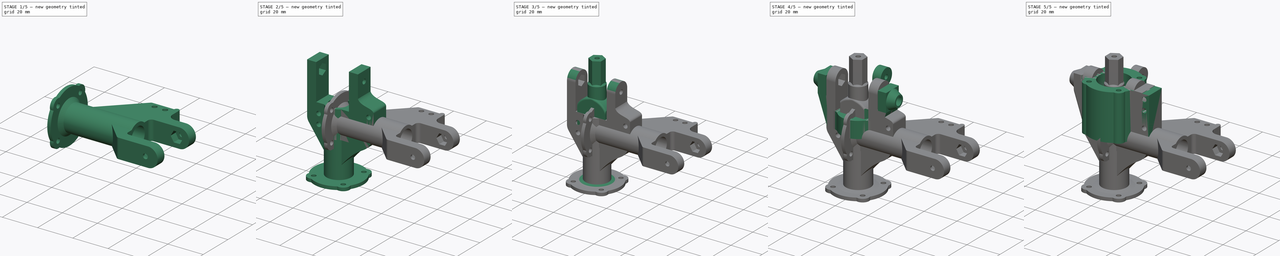
[diagram: build sequence overview — one tinted view per stage of 5, left to right]
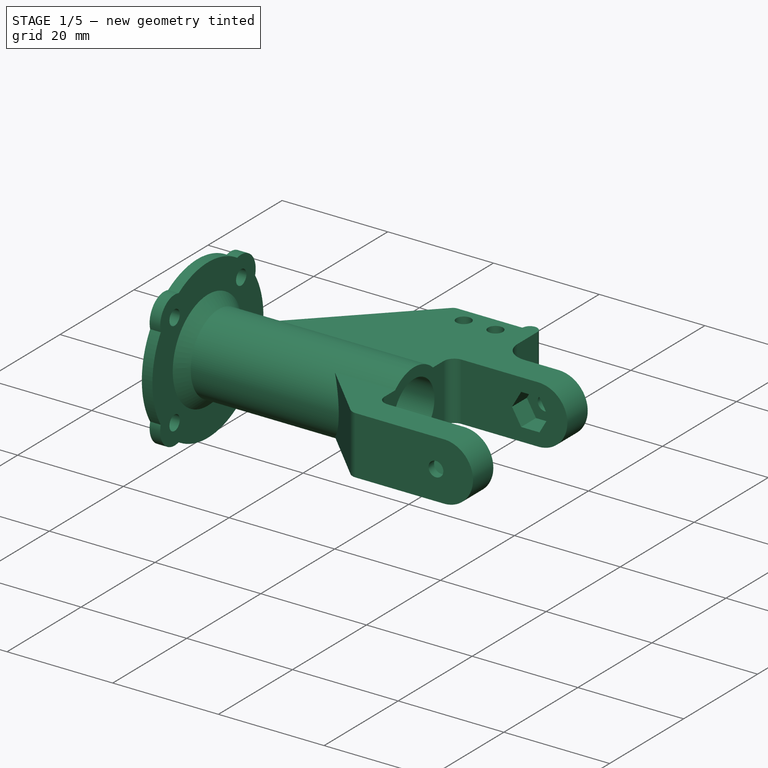
[diagram: stage 1 of 5 — iso view after this stage's code; geometry added in this stage tinted green]
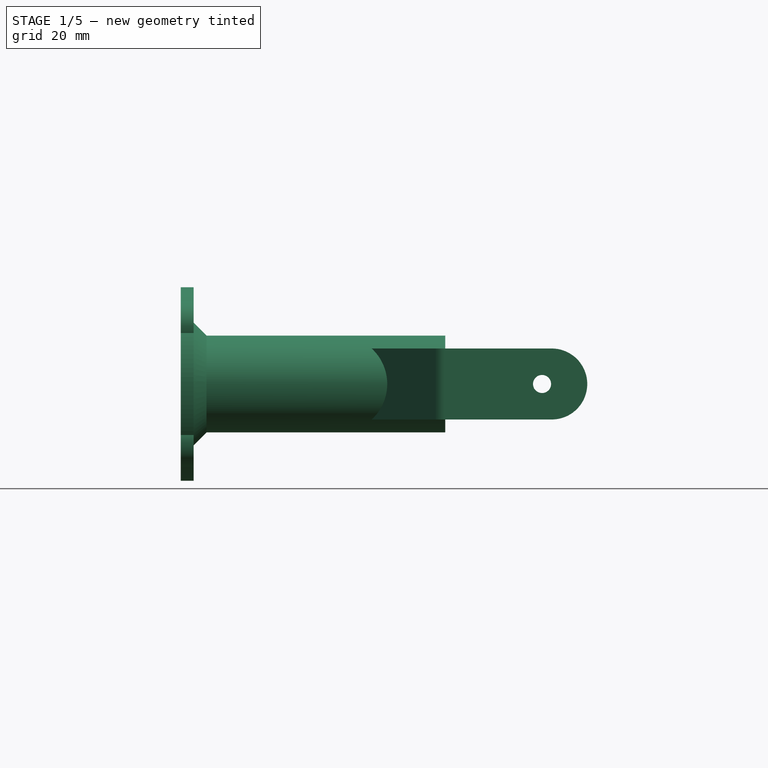
[diagram: stage 1 of 5 — front view after this stage's code; geometry added in this stage tinted green]
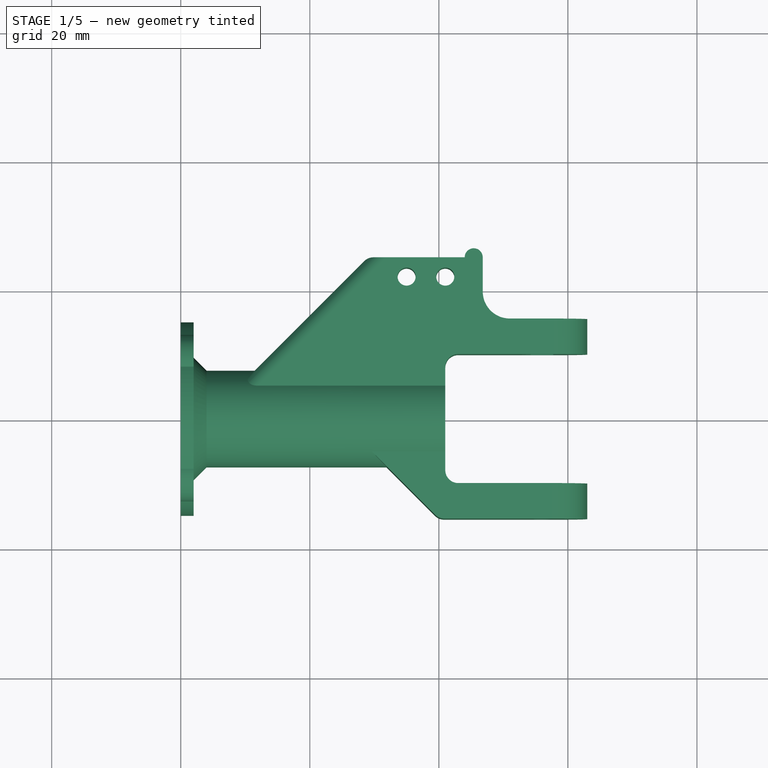
[diagram: stage 1 of 5 — top view after this stage's code; geometry added in this stage tinted green]
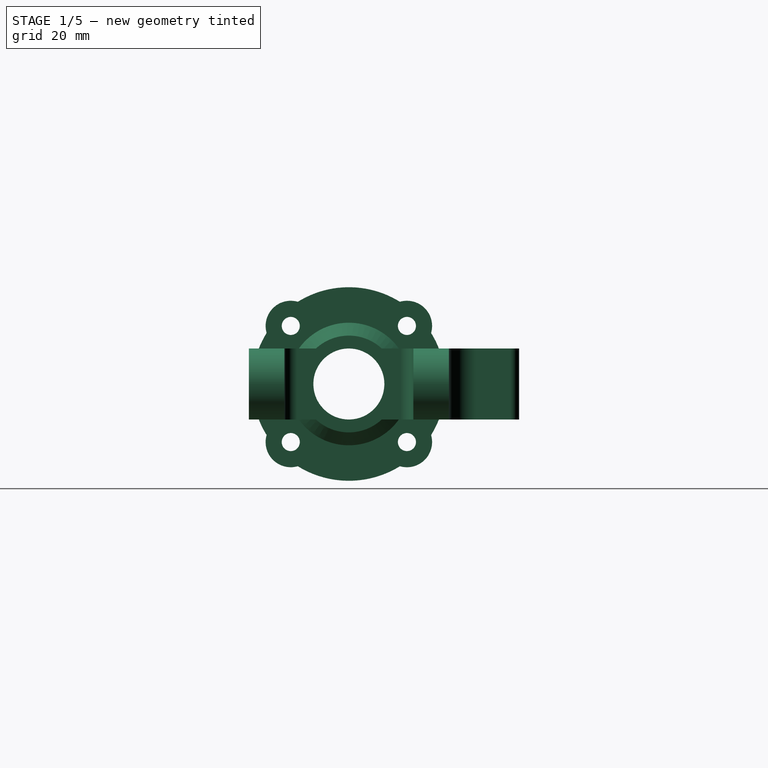
[diagram: stage 1 of 5 — right view after this stage's code; geometry added in this stage tinted green]
FCSTD DOCUMENT  (FreeCAD 0.20R29177 +426 (Git))
Label: frontAxileNew
License: All rights reserved
LicenseURL: http://en.wikipedia.org/wiki/All_rights_reserved
objects: Sketcher::SketchObject×38, PartDesign::Pad×16, PartDesign::Pocket×16, PartDesign::Body×5, PartDesign::Fillet×5, PartDesign::Revolution×4, Spreadsheet::Sheet×1
note: 125 computed .brp shape members not serialized (recipe doc carries the construction recipe); baked Part::Feature solids carry a one-line shape summary decoded from their .brp

FEATURE [PartDesign::Body] Body001  label="Body001Connector"
  Group = -> [Sketch001,Sketch003,Pad002,Sketch004,Sketch005,Pad004,Sketch006,Sketch007,Sketch008,Pad006,Pocket,Pocket001,Pad007,Pad008,Sketch009,Pocket002,Sketch011,Revolution,Sketch012,Pocket004,Sketch032,Pocket011]
  Origin = -> Origin001
  Tip = -> Pocket011
FEATURE [Sketcher::SketchObject] Sketch033
  FullyConstrained = true
  MapMode = 5
  Support = -> [XY_Plane004]
  expr: Constraints[15] = Spreadsheet.armSep
  expr: Constraints[16] = Spreadsheet.armThickNess
  expr: Constraints[17] = Spreadsheet.armUpperLength - Spreadsheet.armBaseHeightAbove0
  expr: Constraints[18] = Spreadsheet.screwToSide + Spreadsheet.screwTight * 2
  expr: Constraints[26] = Spreadsheet.screwTight
  expr: Constraints[27] = Spreadsheet.screwSep
  expr: Constraints[29] = Spreadsheet.distToUpperSupportEdge
  expr: Constraints[30] = Spreadsheet.armTotalLength
  expr: Constraints[35] = Spreadsheet.armSupportR / 2
  expr: Constraints[45] = Spreadsheet.screwToSide
  expr: Constraints[47] = Spreadsheet.screwToSide + 0.01
  expr: Constraints[48] = Spreadsheet.screwToSide
  expr: Constraints[49] = Spreadsheet.screwToSide + 3
  sketch-geometry (19):
    g0: LineSegment StartX=51 StartY=15.5 StartZ=0 EndX=63 EndY=15.5 EndZ=0
    g1: LineSegment StartX=63 StartY=15.5 StartZ=0 EndX=63 EndY=10 EndZ=0
    g2: LineSegment StartX=63 StartY=10 StartZ=0 EndX=41 EndY=10 EndZ=0
    g3: LineSegment StartX=41 StartY=10 StartZ=0 EndX=41 EndY=-10 EndZ=0
    g4: LineSegment StartX=41 StartY=-10 StartZ=0 EndX=63 EndY=-10 EndZ=0
    g5: LineSegment StartX=63 StartY=-10 StartZ=0 EndX=63 EndY=-15.5 EndZ=0
    g6: LineSegment StartX=63 StartY=-15.5 StartZ=0 EndX=40 EndY=-15.5 EndZ=0
    g7: LineSegment StartX=44.01 StartY=25 StartZ=0 EndX=29 EndY=25 EndZ=0
    g8: LineSegment StartX=46.8 StartY=25 StartZ=0 EndX=46.8 EndY=19.7 EndZ=0
    g9: ArcOfCircle CenterX=51 CenterY=19.7 CenterZ=0 NormalX=0 NormalY=0 NormalZ=1 AngleXU=0 Radius=4.2 StartAngle=3.14159 EndAngle=4.71239
    g10: Circle CenterX=41 CenterY=22 CenterZ=0 NormalX=0 NormalY=0 NormalZ=1 AngleXU=0 Radius=1.4
    g11: Circle CenterX=35 CenterY=22 CenterZ=0 NormalX=0 NormalY=0 NormalZ=1 AngleXU=0 Radius=1.4
    g12: LineSegment StartX=35 StartY=22 StartZ=0 EndX=41 EndY=22 EndZ=0
    g13: LineSegment StartX=40 StartY=-15.5 StartZ=0 EndX=28.25 EndY=-3.75 EndZ=0
    g14: LineSegment StartX=0 StartY=3.75 StartZ=0 EndX=0 EndY=-3.75 EndZ=0
    g15: LineSegment StartX=0 StartY=-3.75 StartZ=0 EndX=28.25 EndY=-3.75 EndZ=0
    g16: LineSegment StartX=0 StartY=3.75 StartZ=0 EndX=7.75 EndY=3.75 EndZ=0
    g17: LineSegment StartX=29 StartY=25 StartZ=0 EndX=7.75 EndY=3.75 EndZ=0
    g18: ArcOfCircle CenterX=45.405 CenterY=25 CenterZ=0 NormalX=0 NormalY=0 NormalZ=1 AngleXU=0 Radius=1.395 StartAngle=3e-16 EndAngle=3.14159
  constraints (53):
    c: Horizontal(g0)
    c: Coincident(g1,g0)
    c: Coincident(g2,g1)
    c: Horizontal(g2)
    c: Coincident(g3,g2)
    c: Vertical(g3)
    c: Coincident(g4,g3)
    c: Horizontal(g4)
    c: Coincident(g5,g4)
    c: Vertical(g5)
    c: Coincident(g6,g5)
    c: Horizontal(g6)
    c: Horizontal(g7)
    c: Symmetric(g1,g4,g-1)
    c: Symmetric(g0,g5,g-1)
    c: DistanceY(g3,g3) = 20
    c: DistanceY(g1,g1) = 5.5
    c: DistanceX(g2,g2) = 22
    c: DistanceX(g2,g8) = 5.8
    c: Tangent(g0,g9) = -1.5708
    c: DistanceX(g0,g0) = 12
    c: Tangent(g8,g9) = -1.5708
    c: Coincident(g12,g11)
    c: Coincident(g12,g10)
    c: Horizontal(g12)
    c: Equal(g10,g11)
    c: Radius(g10) = 1.4
    c: DistanceX(g12,g12) = 6
    c: PointOnObject(g10,g3)
    c: DistanceY(g-1,g8) = 25
    c: DistanceX(g-1,g5) = 63
    c: DistanceX(g6,g6) = 23
    c: Coincident(g13,g6)
    c: PointOnObject(g14,g-2)
    c: Symmetric(g14,g14,g-1)
    c: DistanceY(g-1,g14) = 3.75
    c: Coincident(g15,g14)
    c: Horizontal(g15)
    c: Coincident(g13,g15)
    c: Coincident(g16,g14)
    c: Horizontal(g16)
    c: Coincident(g17,g7)
    c: Coincident(g17,g16)
    c: Angle(g17,g-1) = 2.35619
    c: Angle(g-1,g13) = 2.35619
    c: DistanceY(g10,g8) = 3
    c: Vertical(g8)
    c: DistanceX(g10,g7) = 3.01
    c: DistanceY(g11,g7) = 3
    c: DistanceX(g7,g11) = 6
    c: PointOnObject(g18,g7)
    c: Coincident(g18,g7)
    c: Coincident(g18,g8)
FEATURE [PartDesign::Pad] Pad017
  Direction = (0,0,1)
  Length = 11
  Length2 = 10
  Midplane = true
  Profile = -> Sketch033
  ReferenceAxis = -> Sketch033 [N_Axis]
  Type = 0
  expr: Length = Spreadsheet.armHeight
FEATURE [Sketcher::SketchObject] Sketch034  label="Sketch034HexHole"
  FullyConstrained = false
  MapMode = 5
  Placement = pos=(0,0,0) rot=(1,0,0;1.5708rad)
  Support = -> [XZ_Plane004]
  expr: Constraints[29] = Spreadsheet.armHexHoleY + Spreadsheet.armUpperLength
  expr: Constraints[30] = Spreadsheet.armSocketDia / 2
  sketch-geometry (13):
    g0: LineSegment StartX=52.53 StartY=0 StartZ=0 EndX=52.5325 EndY=-0.130552 EndZ=0
    g1: LineSegment StartX=52.5325 StartY=-0.130552 StartZ=0 EndX=52.5398 EndY=-0.260918 EndZ=0
    g2: LineSegment StartX=52.5398 StartY=-0.260918 StartZ=0 EndX=52.5325 EndY=-0.130552 EndZ=0
    g3: LineSegment StartX=52.5325 StartY=-0.130552 StartZ=0 EndX=52.53 EndY=0 EndZ=0
    g4: LineSegment StartX=52.53 StartY=0 StartZ=0 EndX=52.5325 EndY=-0.130552 EndZ=0
    g5: LineSegment StartX=52.5325 StartY=-0.130552 StartZ=0 EndX=52.53 EndY=0 EndZ=0
    g6: LineSegment StartX=57.7275 StartY=-3.00078 StartZ=0 EndX=59.46 EndY=0 EndZ=0
    g7: LineSegment StartX=59.46 StartY=0 StartZ=0 EndX=57.7275 EndY=3.00078 EndZ=0
    g8: LineSegment StartX=57.7275 StartY=3.00078 StartZ=0 EndX=54.2625 EndY=3.00078 EndZ=0
    g9: LineSegment StartX=54.2625 StartY=3.00078 StartZ=0 EndX=52.53 EndY=0 EndZ=0
    g10: LineSegment StartX=52.53 StartY=0 StartZ=0 EndX=54.2625 EndY=-3.00078 EndZ=0
    g11: LineSegment StartX=54.2625 StartY=-3.00078 StartZ=0 EndX=57.7275 EndY=-3.00078 EndZ=0
    g12: Circle CenterX=55.995 CenterY=0 CenterZ=0 NormalX=0 NormalY=0 NormalZ=1 AngleXU=0 Radius=3.465
  constraints (25):
    c: Coincident(g0,g1)
    c: Coincident(g1,g2)
    c: Coincident(g2,g3)
    c: Coincident(g3,g4)
    c: Coincident(g4,g5)
    c: Coincident(g5,g0)
    c: Equal(g0, g1-g5) x5
    c: PointOnObject(g5,g-1)
    c: Coincident(g6,g7)
    c: Coincident(g7,g8)
    c: Coincident(g8,g9)
    c: Coincident(g9,g10)
    c: Coincident(g10,g11)
    c: Coincident(g11,g6)
    c: Equal(g6, g7-g11) x5
    c: PointOnObject(g6,g12)
    c: PointOnObject(g7,g12)
    c: PointOnObject(g8,g12)
    c: PointOnObject(g9,g12)
    c: PointOnObject(g10,g12)
    c: PointOnObject(g11,g12)
    c: DistanceX(g-1,g12) = 55.995
    c: Radius(g12) = 3.465
    c: PointOnObject(g12,g-1)
    c: PointOnObject(g6,g-1)
FEATURE [Sketcher::SketchObject] Sketch035  label="Sketch035ArmScrewHole\"
  FullyConstrained = true
  MapMode = 5
  Placement = pos=(0,0,0) rot=(1,0,0;1.5708rad)
  Support = -> [XZ_Plane004]
  expr: Constraints[1] = Spreadsheet.armHexHoleY + Spreadsheet.armUpperLength
  expr: Constraints[2] = Spreadsheet.screwTight
  sketch-geometry (1):
    g0: Circle CenterX=55.995 CenterY=0 CenterZ=0 NormalX=0 NormalY=0 NormalZ=1 AngleXU=0 Radius=1.4
  constraints (3):
    c: PointOnObject(g0,g-1)
    c: DistanceX(g-1,g0) = 55.995
    c: Radius(g0) = 1.4
FEATURE [PartDesign::Pocket] Pocket012  label="Pocket012ArmScrewHole"
  BaseFeature = -> Pad017
  Direction = (0,1,2e-16)
  Length = 5
  Length2 = 5
  Midplane = true
  Profile = -> Sketch035
  ReferenceAxis = -> Sketch035 [N_Axis]
  Type = 1
FEATURE [PartDesign::Pocket] Pocket013  label="Pocket013HexHole"
  BaseFeature = -> Pocket012
  Direction = (0,1,2e-16)
  Length = 28
  Length2 = 5
  Midplane = true
  Profile = -> Sketch034
  ReferenceAxis = -> Sketch034 [N_Axis]
  Type = 0
  expr: Length = Spreadsheet.armSep + Spreadsheet.armHexKnotHoleDepth * 2
FEATURE [Sketcher::SketchObject] Sketch036  label="Sketch036Base"
  FullyConstrained = true
  MapMode = 5
  Placement = pos=(0,0,0) rot=(0.57735,0.57735,0.57735;2.0944rad)
  Support = -> [YZ_Plane004]
  expr: Constraints[10] = Spreadsheet.frontHousingScrewSqr
  expr: Constraints[18] = Spreadsheet.screwOuterR
  expr: Constraints[1] = Spreadsheet.outerR
  expr: Constraints[5] = Spreadsheet.screwTight
  expr: Constraints[9] = Spreadsheet.frontHousingScrewSqr
  sketch-geometry (12):
    g0: ArcOfCircle CenterX=0 CenterY=0 CenterZ=0 NormalX=0 NormalY=0 NormalZ=1 AngleXU=0 Radius=15 StartAngle=2.58611 EndAngle=3.69708
    g1: Circle CenterX=9 CenterY=9 CenterZ=0 NormalX=0 NormalY=0 NormalZ=1 AngleXU=0 Radius=1.4
    g2: Circle CenterX=-9 CenterY=9 CenterZ=0 NormalX=0 NormalY=0 NormalZ=1 AngleXU=0 Radius=1.4
    g3: Circle CenterX=-9 CenterY=-9 CenterZ=0 NormalX=0 NormalY=0 NormalZ=1 AngleXU=0 Radius=1.4
    g4: Circle CenterX=9 CenterY=-9 CenterZ=0 NormalX=0 NormalY=0 NormalZ=1 AngleXU=0 Radius=1.4
    g5: ArcOfCircle CenterX=9 CenterY=9 CenterZ=0 NormalX=0 NormalY=0 NormalZ=1 AngleXU=0 Radius=3.9 StartAngle=6.00001 EndAngle=8.13716
    g6: ArcOfCircle CenterX=-9 CenterY=9 CenterZ=0 NormalX=0 NormalY=0 NormalZ=1 AngleXU=0 Radius=3.9 StartAngle=1.28762 EndAngle=3.42477
    g7: ArcOfCircle CenterX=-9 CenterY=-9 CenterZ=0 NormalX=0 NormalY=0 NormalZ=1 AngleXU=0 Radius=3.9 StartAngle=2.85842 EndAngle=4.99556
    g8: ArcOfCircle CenterX=9 CenterY=-9 CenterZ=0 NormalX=0 NormalY=0 NormalZ=1 AngleXU=0 Radius=3.9 StartAngle=4.42922 EndAngle=6.56636
    g9: ArcOfCircle CenterX=0 CenterY=0 CenterZ=0 NormalX=0 NormalY=0 NormalZ=1 AngleXU=0 Radius=15 StartAngle=1.01531 EndAngle=2.12628
    g10: ArcOfCircle CenterX=0 CenterY=0 CenterZ=0 NormalX=0 NormalY=0 NormalZ=1 AngleXU=0 Radius=15 StartAngle=5.7277 EndAngle=6.83867
    g11: ArcOfCircle CenterX=0 CenterY=0 CenterZ=0 NormalX=0 NormalY=0 NormalZ=1 AngleXU=0 Radius=15 StartAngle=4.1569 EndAngle=5.26787
  constraints (33):
    c: Coincident(g0,g-1)
    c: Radius(g0) = 15
    c: Equal(g3,g4)
    c: Equal(g3,g2)
    c: Equal(g3,g1)
    c: Radius(g3) = 1.4
    c: Symmetric(g1,g2,g-2)
    c: Symmetric(g4,g3,g-2)
    c: Symmetric(g4,g1,g-1)
    c: DistanceX(g0,g1) = 9
    c: DistanceY(g0,g1) = 9
    c: Coincident(g5,g1)
    c: Coincident(g6,g2)
    c: Coincident(g7,g3)
    c: Coincident(g8,g4)
    c: Equal(g7,g6)
    c: Equal(g7,g5)
    c: Equal(g7,g8)
    c: Radius(g7) = 3.9
    c: Coincident(g9,g6)
    c: Coincident(g0,g6)
    c: Equal(g0,g9)
    c: Coincident(g10,g5)
    c: Coincident(g9,g5)
    c: Coincident(g0,g9)
    c: Equal(g0,g10)
    c: Coincident(g11,g8)
    c: Coincident(g10,g8)
    c: Coincident(g0,g10)
    c: Equal(g0,g11)
    c: Coincident(g0,g7)
    c: Coincident(g11,g7)
    c: Coincident(g0,g11)
FEATURE [PartDesign::Pad] Pad018
  BaseFeature = -> Pocket013
  Direction = (1,-2e-16,3e-16)
  Length = 2
  Length2 = 10
  Profile = -> Sketch036
  ReferenceAxis = -> Sketch036 [N_Axis]
  Type = 0
FEATURE [Sketcher::SketchObject] Sketch038  label="Sketch038ArmTopTrim"
  ExternalGeometry = -> [Pad018]
  FullyConstrained = true
  MapMode = 5
  Placement = pos=(0,0,0) rot=(1,0,0;1.5708rad)
  Support = -> [XZ_Plane004]
  expr: Constraints[1] = Spreadsheet.armHeight / 2
  sketch-geometry (4):
    g0: ArcOfCircle CenterX=57.5 CenterY=0 CenterZ=0 NormalX=0 NormalY=0 NormalZ=1 AngleXU=0 Radius=5.5 StartAngle=4.71239 EndAngle=7.85398
    g1: LineSegment StartX=63 StartY=5.5 StartZ=0 EndX=57.5 EndY=5.5 EndZ=0
    g2: LineSegment StartX=63 StartY=-5.5 StartZ=0 EndX=57.5 EndY=-5.5 EndZ=0
    g3: LineSegment StartX=63 StartY=-5.5 StartZ=0 EndX=63 EndY=5.5 EndZ=0
  constraints (10):
    c: PointOnObject(g0,g-1)
    c: Radius(g0) = 5.5
    c: Horizontal(g1)
    c: Coincident(g3,g2)
    c: Coincident(g3,g1)
    c: Tangent(g0,g2) = 1.5708
    c: PointOnObject(g-3,g3)
    c: Coincident(g2,g-3)
    c: Tangent(g0,g3)
    c: Tangent(g0,g1) = -1.5708
FEATURE [PartDesign::Pocket] Pocket014
  BaseFeature = -> Pad018
  Direction = (0,1,2e-16)
  Length = 5
  Length2 = 5
  Midplane = true
  Profile = -> Sketch038
  ReferenceAxis = -> Sketch038 [N_Axis]
  Type = 1
FEATURE [Sketcher::SketchObject] Sketch039  label="Sketch039SupportCylendar"
  ExternalGeometry = -> [Pocket014]
  FullyConstrained = true
  MapMode = 5
  Support = -> [XY_Plane004]
  expr: Constraints[14] = Spreadsheet.armSupportBaseRev
  expr: Constraints[15] = Spreadsheet.armSupportBaseRev
  expr: Constraints[17] = Spreadsheet.armSupportR
  expr: Constraints[18] = Spreadsheet.armBaseToPlatformLen
  expr: Constraints[8] = Spreadsheet.armSupportR
  sketch-geometry (7):
    g0: LineSegment StartX=41 StartY=0 StartZ=0 EndX=41 EndY=7.5 EndZ=0
    g1: LineSegment StartX=0 StartY=0 StartZ=0 EndX=41 EndY=0 EndZ=0
    g2: LineSegment StartX=0 StartY=7.5 StartZ=0 EndX=2 EndY=7.5 EndZ=0
    g3: LineSegment StartX=0 StartY=0 StartZ=0 EndX=0 EndY=7.5 EndZ=0
    g4: LineSegment StartX=2 StartY=7.5 StartZ=0 EndX=2 EndY=9.5 EndZ=0
    g5: LineSegment StartX=2 StartY=9.5 StartZ=0 EndX=4 EndY=7.5 EndZ=0
    g6: LineSegment StartX=4 StartY=7.5 StartZ=0 EndX=41 EndY=7.5 EndZ=0
  constraints (20):
    c: PointOnObject(g0,g-1)
    c: Vertical(g0)
    c: Coincident(g1,g-1)
    c: Coincident(g1,g0)
    c: PointOnObject(g2,g-2)
    c: Horizontal(g2)
    c: Coincident(g3,g1)
    c: Coincident(g3,g2)
    c: DistanceY(g3,g3) = 7.5
    c: Vertical(g4)
    c: Coincident(g5,g4)
    c: Coincident(g2,g4)
    c: Coincident(g6,g5)
    c: PointOnObject(g2,g-3)
    c: DistanceY(g4,g4) = 2
    c: DistanceX(g-3,g5) = 2
    c: Horizontal(g6)
    c: DistanceY(g1,g5) = 7.5
    c: DistanceX(g1,g1) = 41
    c: Coincident(g6,g0)
FEATURE [PartDesign::Revolution] Revolution004
  Angle = 360
  Axis = (1,0,0)
  Base = (0,0,0)
  BaseFeature = -> Pocket014
  Profile = -> Sketch039
  ReferenceAxis = -> Sketch039 [H_Axis]
FEATURE [Sketcher::SketchObject] Sketch040  label="Sketch040CenterHole"
  FullyConstrained = true
  MapMode = 5
  Placement = pos=(0,0,0) rot=(0.57735,0.57735,0.57735;2.0944rad)
  Support = -> [YZ_Plane004]
  expr: Constraints[1] = Spreadsheet.armSupportHoleR
  sketch-geometry (1):
    g0: Circle CenterX=0 CenterY=0 CenterZ=0 NormalX=0 NormalY=0 NormalZ=1 AngleXU=0 Radius=5.5
  constraints (2):
    c: Coincident(g0,g-1)
    c: Radius(g0) = 5.5
FEATURE [PartDesign::Pocket] Pocket015
  BaseFeature = -> Revolution004
  Direction = (-1,2e-16,-3e-16)
  Length = 5
  Length2 = 5
  Profile = -> Sketch040
  ReferenceAxis = -> Sketch040 [N_Axis]
  Reversed = true
  Type = 1
FEATURE [PartDesign::Fillet] Fillet
  Base = -> Pocket015 [Edge35,Edge99,Edge81,Edge29,Edge25,Edge16]
  BaseFeature = -> Pocket015
  Radius = 2
  SupportTransform = false
  UseAllEdges = false
FEATURE [PartDesign::Body] Body004  label="Body004ConnectorV2"
  Group = -> [Sketch033,Pad017,Sketch034,Sketch035,Pocket012,Pocket013,Sketch036,Pad018,Sketch038,Pocket014,Sketch039,Revolution004,Sketch040,Pocket015,Fillet]
  Origin = -> Origin004
  Tip = -> Fillet
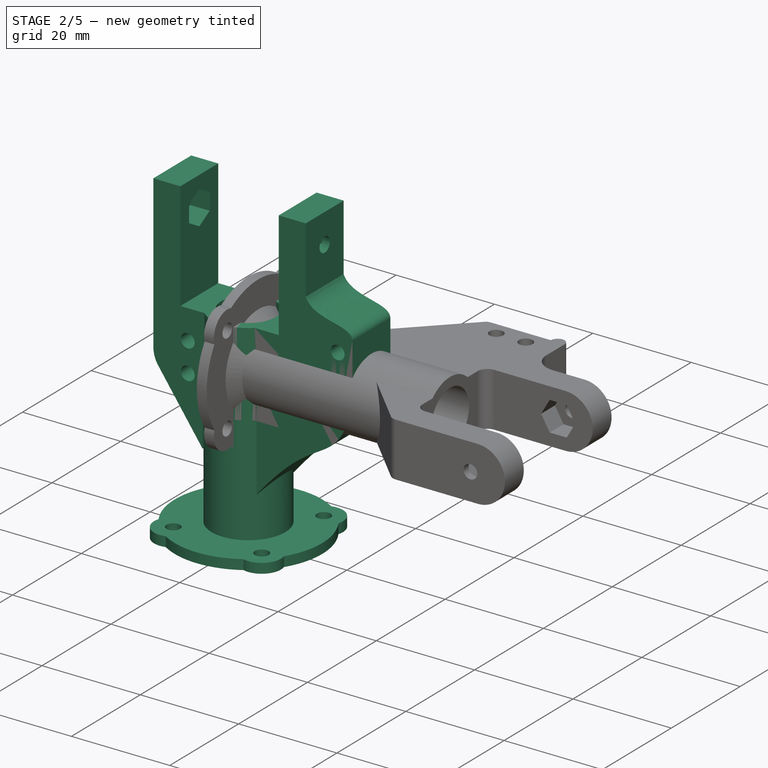
[diagram: stage 2 of 5 — iso view after this stage's code; geometry added in this stage tinted green]
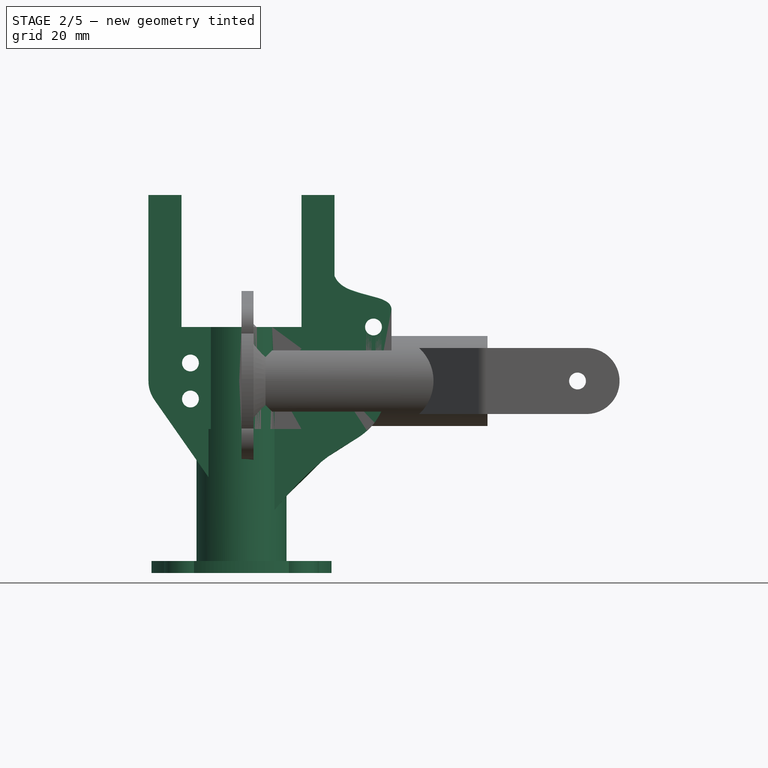
[diagram: stage 2 of 5 — front view after this stage's code; geometry added in this stage tinted green]
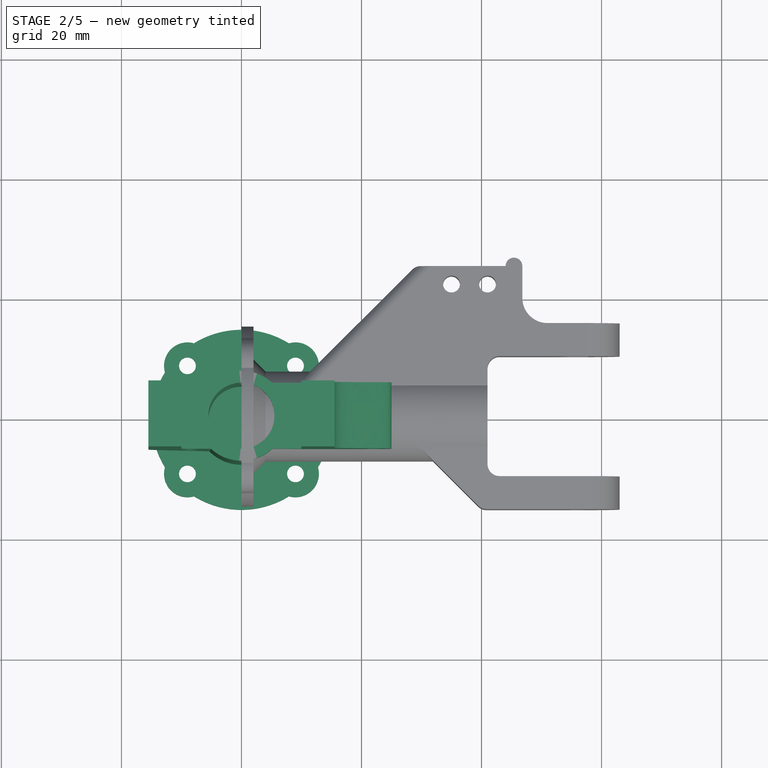
[diagram: stage 2 of 5 — top view after this stage's code; geometry added in this stage tinted green]
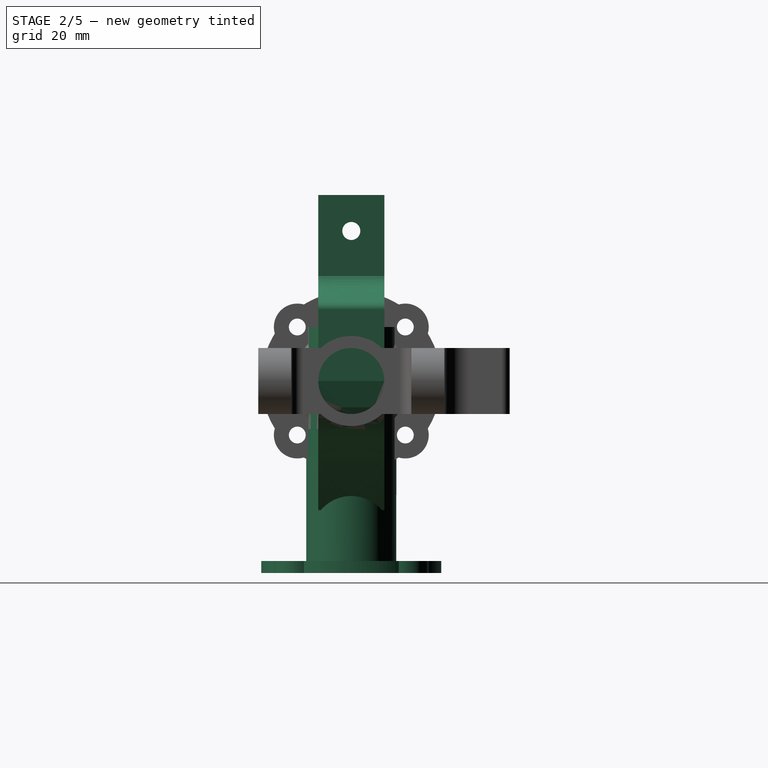
[diagram: stage 2 of 5 — right view after this stage's code; geometry added in this stage tinted green]
FEATURE [Sketcher::SketchObject] Sketch001  label="Sketch001Arms"
  FullyConstrained = true
  MapMode = 5
  Support = -> [XY_Plane001]
  expr: Constraints[10] = Spreadsheet.armHexCenterToSide
  expr: Constraints[11] = Spreadsheet.armHexCenterToSide
  expr: Constraints[12] = Spreadsheet.armHexCenterToSide
  expr: Constraints[13] = Spreadsheet.armThickNess
  expr: Constraints[14] = Spreadsheet.armThickNess
  expr: Constraints[15] = Spreadsheet.armSep / 2
  expr: Constraints[16] = Spreadsheet.armSep / 2
  expr: Constraints[17] = Spreadsheet.armHexCenterToSide
  sketch-geometry (8):
    g0: LineSegment StartX=-15.5 StartY=5.5 StartZ=0 EndX=-10 EndY=5.5 EndZ=0
    g1: LineSegment StartX=-10 StartY=5.5 StartZ=0 EndX=-10 EndY=-5.5 EndZ=0
    g2: LineSegment StartX=-15.5 StartY=-5.5 StartZ=0 EndX=-15.5 EndY=5.5 EndZ=0
    g3: LineSegment StartX=10 StartY=5.5 StartZ=0 EndX=15.5 EndY=5.5 EndZ=0
    g4: LineSegment StartX=15.5 StartY=5.5 StartZ=0 EndX=15.5 EndY=-5.5 EndZ=0
    g5: LineSegment StartX=10 StartY=-5.5 StartZ=0 EndX=10 EndY=5.5 EndZ=0
    g6: LineSegment StartX=-15.5 StartY=-5.5 StartZ=0 EndX=-10 EndY=-5.5 EndZ=0
    g7: LineSegment StartX=15.5 StartY=-5.5 StartZ=0 EndX=10 EndY=-5.5 EndZ=0
  constraints (24):
    c: Coincident(g0,g1)
    c: Coincident(g2,g0)
    c: Horizontal(g0)
    c: Vertical(g1)
    c: Vertical(g2)
    c: Coincident(g3,g4)
    c: Coincident(g5,g3)
    c: Horizontal(g3)
    c: Vertical(g4)
    c: Vertical(g5)
    c: DistanceY(g2,g-1) = 5.5
    c: DistanceY(g-1,g3) = 5.5
    c: DistanceY(g-1,g0) = 5.5
    c: DistanceX(g3,g3) = 5.5
    c: DistanceX(g0,g0) = 5.5
    c: DistanceX(g-1,g3) = 10
    c: DistanceX(g0,g-1) = 10
    c: DistanceY(g4,g-1) = 5.5
    c: Coincident(g6,g2)
    c: Horizontal(g6)
    c: Coincident(g7,g4)
    c: Horizontal(g7)
    c: Coincident(g1,g6)
    c: Coincident(g5,g7)
FEATURE [Sketcher::SketchObject] Sketch003  label="Sketch003UpperPlatform"
  AttachmentOffset = pos=(0,0,9) rot=(0,0,1;0rad)
  FullyConstrained = false
  MapMode = 5
  Placement = pos=(0,0,9) rot=(0,0,1;0rad)
  Support = -> [XY_Plane001]
  expr: .AttachmentOffset.Base.z = Spreadsheet.armBaseHeightAbove0
  expr: Constraints[17] = Spreadsheet.armSupportHoleR
  expr: Constraints[1] = Spreadsheet.armSupportR
  sketch-geometry (9):
    g0: ArcOfCircle CenterX=0 CenterY=0 CenterZ=0 NormalX=0 NormalY=0 NormalZ=1 AngleXU=0 Radius=7.5 StartAngle=3.9648 EndAngle=5.45997
    g1: LineSegment StartX=-10 StartY=5.5 StartZ=0 EndX=-5.09902 EndY=5.5 EndZ=0
    g2: LineSegment StartX=10 StartY=5.5 StartZ=0 EndX=10 EndY=-5.5 EndZ=0
    g3: LineSegment StartX=10 StartY=-5.5 StartZ=0 EndX=5.09902 EndY=-5.5 EndZ=0
    g4: LineSegment StartX=-10 StartY=-5.5 StartZ=0 EndX=-10 EndY=5.5 EndZ=0
    g5: LineSegment StartX=5.09902 StartY=5.5 StartZ=0 EndX=10 EndY=5.5 EndZ=0
    g6: LineSegment StartX=-5.09902 StartY=-5.5 StartZ=0 EndX=-10 EndY=-5.5 EndZ=0
    g7: ArcOfCircle CenterX=0 CenterY=0 CenterZ=0 NormalX=0 NormalY=0 NormalZ=1 AngleXU=0 Radius=7.5 StartAngle=0.823212 EndAngle=2.31838
    g8: Circle CenterX=0 CenterY=0 CenterZ=0 NormalX=0 NormalY=0 NormalZ=1 AngleXU=0 Radius=5.5
  constraints (18):
    c: Coincident(g0,g-1)
    c: Radius(g0) = 7.5
    c: Coincident(g5,g2)
    c: Coincident(g2,g3)
    c: Coincident(g6,g4)
    c: Coincident(g4,g1)
    c: Horizontal(g1)
    c: Horizontal(g3)
    c: Coincident(g7,g1)
    c: Coincident(g0,g6)
    c: Equal(g0,g7)
    c: Coincident(g0,g3)
    c: Coincident(g7,g5)
    c: Coincident(g0,g7)
    c: Horizontal(g6)
    c: Horizontal(g5)
    c: Coincident(g8,g0)
    c: Radius(g8) = 5.5
FEATURE [PartDesign::Pad] Pad002  label="Pad002UpperPlatform"
  Direction = (0,0,1)
  Length = 17
  Length2 = 10
  Profile = -> Sketch003
  ReferenceAxis = -> Sketch003 [N_Axis]
  Reversed = true
  Type = 0
  expr: Length = Spreadsheet.armBaseHeightAbove0 + Spreadsheet.armUnderDropLen
FEATURE [Sketcher::SketchObject] Sketch004  label="Sketch004UnderArm"
  FullyConstrained = false
  MapMode = 5
  Placement = pos=(0,0,0) rot=(1,0,0;1.5708rad)
  Support = -> [XZ_Plane001]
  expr: Constraints[10] = Spreadsheet.armThickNess
  expr: Constraints[11] = Spreadsheet.armUnderSupportAngle
  expr: Constraints[13] = Spreadsheet.armSupportHoleR
  expr: Constraints[16] = Spreadsheet.distToUpperSupportEdge
  expr: Constraints[20] = Spreadsheet.screwToSide
  expr: Constraints[21] = Spreadsheet.screwToSide
  expr: Constraints[24] = Spreadsheet.screwSep
  expr: Constraints[26] = Spreadsheet.screwTight
  expr: Constraints[27] = Spreadsheet.screwToSide
  expr: Constraints[28] = Spreadsheet.armSep / 2 + Spreadsheet.armThickNess
  expr: Constraints[3] = Spreadsheet.armSupportHoleR
  expr: Constraints[44] = Spreadsheet.armThickNess
  expr: Constraints[45] = Spreadsheet.armThickNess
  expr: Constraints[9] = Spreadsheet.armSep / 2
  sketch-geometry (27):
    g0: ArcOfCircle CenterX=-10 CenterY=0 CenterZ=0 NormalX=0 NormalY=0 NormalZ=1 AngleXU=0 Radius=5.5 StartAngle=3.14159 EndAngle=3.75246
    g1: LineSegment StartX=-5.5 StartY=7e-16 StartZ=0 EndX=-5.5 EndY=-16.0156 EndZ=0
    g2: LineSegment StartX=-15.5 StartY=7e-16 StartZ=0 EndX=-5.5 EndY=7e-16 EndZ=0
    g3: LineSegment StartX=-14.5053 StartY=-3.15467 StartZ=0 EndX=-5.5 EndY=-16.0156 EndZ=0
    g4: LineSegment StartX=5.5 StartY=0 StartZ=0 EndX=5.5 EndY=-21.5156 EndZ=0
    g5: LineSegment StartX=5.5 StartY=0 StartZ=0 EndX=15.5 EndY=12 EndZ=0
    g6: LineSegment StartX=25 StartY=0 StartZ=0 EndX=25 EndY=12 EndZ=0
    g7: LineSegment StartX=22 StartY=14.6246 StartZ=0 EndX=22 EndY=3 EndZ=0
    g8: Circle CenterX=22 CenterY=3 CenterZ=0 NormalX=0 NormalY=0 NormalZ=1 AngleXU=0 Radius=1.4
    g9: Circle CenterX=22 CenterY=9 CenterZ=0 NormalX=0 NormalY=0 NormalZ=1 AngleXU=0 Radius=1.4
    g10: LineSegment StartX=15.5 StartY=12 StartZ=0 EndX=15.5 EndY=17.5 EndZ=0
    g11-g14: Circle x4 (B-spline internal-alignment scaffolding for g15; pole/knot coordinates omitted)
    g15: BSplineCurve PolesCount=4 KnotsCount=2 Degree=3 IsPeriodic=0
    g16: GeomPoint X=25 Y=12 Z=0
    g17: GeomPoint X=15.5 Y=17.5 Z=0
    g18-g22: Circle x5 (B-spline internal-alignment scaffolding for g23; pole/knot coordinates omitted)
    g23: BSplineCurve PolesCount=5 KnotsCount=3 Degree=3 IsPeriodic=0
    g24: GeomPoint X=25 Y=0 Z=0
    g25: GeomPoint X=18.5905 Y=-9.95937 Z=0
    g26: GeomPoint X=5.5 Y=-21.5156 Z=0
  constraints (51):
    c: Vertical(g1)
    c: Coincident(g2,g0)
    c: Coincident(g1,g2)
    c: DistanceX(g1,g-1) = 5.5
    c: Coincident(g1,g3)
    c: Tangent(g0,g3) = -1.5708
    c: Horizontal(g2)
    c: PointOnObject(g1,g-1)
    c: PointOnObject(g0,g2)
    c: DistanceX(g0,g-1) = 10
    c: DistanceX(g0,g0) = 5.5
    c: Angle(g1,g3) = 0.610865
    c: PointOnObject(g4,g-1)
    c: DistanceX(g-1,g4) = 5.5
    c: Vertical(g4)
    c: Coincident(g5,g4)
    c: DistanceX(g-1,g6) = 25
    c: PointOnObject(g6,g-1)
    c: Vertical(g6)
    c: Vertical(g7)
    c: DistanceX(g7,g6) = 3
    c: DistanceY(g-1,g7) = 3
    c: Coincident(g8,g7)
    c: PointOnObject(g9,g7)
    c: DistanceY(g8,g9) = 6
    c: Equal(g9,g8)
    c: Radius(g9) = 1.4
    c: DistanceY(g9,g6) = 3
    c: DistanceX(g-1,g5) = 15.5
    c: Coincident(g10,g5)
    c: Vertical(g10)
    c: DistanceY(g5,g6) = 0
    c: Weight(g11) = 1
    c: Coincident(g15,g6)
    c: Equal(g11,g12)
    c: Equal(g11,g13)
    c: Equal(g11,g14)
    c: Coincident(g15,g10)
    c: InternalAlignment(g11-g14 -> g15) x4
    c: InternalAlignment(g16,g15)
    c: InternalAlignment(g17,g15)
    c: DistanceY(g10,g10) = 5.5
    c: DistanceY(g4,g1) = 5.5
    c: Weight(g18) = 1
    c: Coincident(g23,g6)
    c: Equal(g18, g19-g22) x4
    c: Coincident(g23,g4)
    c: InternalAlignment(g18-g22 -> g23) x5
    c: InternalAlignment(g24,g23)
    c: InternalAlignment(g25,g23)
    c: InternalAlignment(g26,g23)
FEATURE [Sketcher::SketchObject] Sketch005  label="Sketch005BottomSupprt"
  FullyConstrained = true
  MapMode = 5
  Support = -> [XY_Plane001]
  expr: Constraints[2] = Spreadsheet.armSupportHoleR
  expr: Constraints[3] = Spreadsheet.armSupportR
  sketch-geometry (2):
    g0: Circle CenterX=0 CenterY=0 CenterZ=0 NormalX=0 NormalY=0 NormalZ=1 AngleXU=0 Radius=5.5
    g1: Circle CenterX=0 CenterY=0 CenterZ=0 NormalX=0 NormalY=0 NormalZ=1 AngleXU=0 Radius=7.5
  constraints (4):
    c: Coincident(g0,g-1)
    c: Coincident(g1,g0)
    c: Radius(g0) = 5.5
    c: Radius(g1) = 7.5
FEATURE [PartDesign::Pad] Pad004  label="Pad004BottomSupport"
  BaseFeature = -> Pad002
  Direction = (0,0,1)
  Length = 32
  Length2 = 10
  Profile = -> Sketch005
  ReferenceAxis = -> Sketch005 [N_Axis]
  Reversed = true
  Type = 0
  expr: Length = Spreadsheet.armSupportBottomLength
FEATURE [Sketcher::SketchObject] Sketch006  label="Sketch006HexSmallHole"
  FullyConstrained = true
  MapMode = 5
  Placement = pos=(0,0,0) rot=(0.57735,0.57735,0.57735;2.0944rad)
  Support = -> [YZ_Plane001]
  expr: Constraints[1] = Spreadsheet.armHexHoleY
  expr: Constraints[2] = Spreadsheet.screwPassThroughHole
  sketch-geometry (1):
    g0: Circle CenterX=0 CenterY=24.995 CenterZ=0 NormalX=0 NormalY=0 NormalZ=1 AngleXU=0 Radius=1.5
  constraints (3):
    c: PointOnObject(g0,g-2)
    c: DistanceY(g-1,g0) = 24.995
    c: Radius(g0) = 1.5
FEATURE [Sketcher::SketchObject] Sketch007  label="Sketch007HexHole"
  FullyConstrained = true
  MapMode = 5
  Placement = pos=(0,0,0) rot=(0.57735,0.57735,0.57735;2.0944rad)
  Support = -> [YZ_Plane001]
  expr: Constraints[18] = Spreadsheet.armHexHoleY
  expr: Constraints[20] = Spreadsheet.armSocketDia / 2
  sketch-geometry (7):
    g0: LineSegment StartX=3.00078 StartY=23.2625 StartZ=0 EndX=3.00078 EndY=26.7275 EndZ=0
    g1: LineSegment StartX=3.00078 StartY=26.7275 StartZ=0 EndX=0 EndY=28.46 EndZ=0
    g2: LineSegment StartX=0 StartY=28.46 StartZ=0 EndX=-3.00078 EndY=26.7275 EndZ=0
    g3: LineSegment StartX=-3.00078 StartY=26.7275 StartZ=0 EndX=-3.00078 EndY=23.2625 EndZ=0
    g4: LineSegment StartX=-3.00078 StartY=23.2625 StartZ=0 EndX=-4e-16 EndY=21.53 EndZ=0
    g5: LineSegment StartX=-4e-16 StartY=21.53 StartZ=0 EndX=3.00078 EndY=23.2625 EndZ=0
    g6: Circle CenterX=0 CenterY=24.995 CenterZ=0 NormalX=0 NormalY=0 NormalZ=1 AngleXU=0 Radius=3.465
  constraints (17):
    c: Coincident(g0,g1)
    c: Coincident(g1,g2)
    c: Coincident(g2,g3)
    c: Coincident(g3,g4)
    c: Coincident(g4,g5)
    c: Coincident(g5,g0)
    c: Equal(g0, g1-g5) x5
    c: PointOnObject(g0,g6)
    c: PointOnObject(g1,g6)
    c: PointOnObject(g2,g6)
    c: PointOnObject(g3,g6)
    c: PointOnObject(g4,g6)
    c: PointOnObject(g5,g6)
    c: PointOnObject(g6,g-2)
    c: DistanceY(g-1,g6) = 24.995
    c: PointOnObject(g1,g-2)
    c: Radius(g6) = 3.465
FEATURE [Sketcher::SketchObject] Sketch008  label="Sketch008Base"
  AttachmentOffset = pos=(0,0,-32) rot=(0,0,1;0rad)
  FullyConstrained = true
  MapMode = 5
  Placement = pos=(0,0,-32) rot=(0,0,1;0rad)
  Support = -> [XY_Plane001]
  expr: .AttachmentOffset.Base.z = -Spreadsheet.armSupportBottomLength
  expr: Constraints[10] = Spreadsheet.frontHousingScrewSqr
  expr: Constraints[18] = Spreadsheet.screwOuterR
  expr: Constraints[1] = Spreadsheet.outerR
  expr: Constraints[5] = Spreadsheet.screwTight
  expr: Constraints[9] = Spreadsheet.frontHousingScrewSqr
  sketch-geometry (12):
    g0: ArcOfCircle CenterX=0 CenterY=0 CenterZ=0 NormalX=0 NormalY=0 NormalZ=1 AngleXU=0 Radius=15 StartAngle=2.58611 EndAngle=3.69708
    g1: Circle CenterX=9 CenterY=9 CenterZ=0 NormalX=0 NormalY=0 NormalZ=1 AngleXU=0 Radius=1.4
    g2: Circle CenterX=-9 CenterY=9 CenterZ=0 NormalX=0 NormalY=0 NormalZ=1 AngleXU=0 Radius=1.4
    g3: Circle CenterX=-9 CenterY=-9 CenterZ=0 NormalX=0 NormalY=0 NormalZ=1 AngleXU=0 Radius=1.4
    g4: Circle CenterX=9 CenterY=-9 CenterZ=0 NormalX=0 NormalY=0 NormalZ=1 AngleXU=0 Radius=1.4
    g5: ArcOfCircle CenterX=9 CenterY=9 CenterZ=0 NormalX=0 NormalY=0 NormalZ=1 AngleXU=0 Radius=3.9 StartAngle=6.00001 EndAngle=8.13716
    g6: ArcOfCircle CenterX=-9 CenterY=9 CenterZ=0 NormalX=0 NormalY=0 NormalZ=1 AngleXU=0 Radius=3.9 StartAngle=1.28762 EndAngle=3.42477
    g7: ArcOfCircle CenterX=-9 CenterY=-9 CenterZ=0 NormalX=0 NormalY=0 NormalZ=1 AngleXU=0 Radius=3.9 StartAngle=2.85842 EndAngle=4.99556
    g8: ArcOfCircle CenterX=9 CenterY=-9 CenterZ=0 NormalX=0 NormalY=0 NormalZ=1 AngleXU=0 Radius=3.9 StartAngle=4.42922 EndAngle=6.56636
    g9: ArcOfCircle CenterX=0 CenterY=0 CenterZ=0 NormalX=0 NormalY=0 NormalZ=1 AngleXU=0 Radius=15 StartAngle=1.01531 EndAngle=2.12628
    g10: ArcOfCircle CenterX=0 CenterY=0 CenterZ=0 NormalX=0 NormalY=0 NormalZ=1 AngleXU=0 Radius=15 StartAngle=5.7277 EndAngle=6.83867
    g11: ArcOfCircle CenterX=0 CenterY=0 CenterZ=0 NormalX=0 NormalY=0 NormalZ=1 AngleXU=0 Radius=15 StartAngle=4.1569 EndAngle=5.26787
  constraints (33):
    c: Coincident(g0,g-1)
    c: Radius(g0) = 15
    c: Equal(g3,g4)
    c: Equal(g3,g1)
    c: Equal(g3,g2)
    c: Radius(g3) = 1.4
    c: Symmetric(g1,g2,g-2)
    c: Symmetric(g1,g4,g-1)
    c: Symmetric(g4,g3,g-2)
    c: DistanceX(g0,g1) = 9
    c: DistanceY(g0,g1) = 9
    c: Coincident(g5,g1)
    c: Coincident(g6,g2)
    c: Coincident(g7,g3)
    c: Coincident(g8,g4)
    c: Equal(g5,g6)
    c: Equal(g5,g7)
    c: Equal(g5,g8)
    c: Radius(g5) = 3.9
    c: Coincident(g9,g6)
    c: Coincident(g0,g6)
    c: Equal(g0,g9)
    c: Coincident(g10,g5)
    c: Coincident(g9,g5)
    c: Coincident(g0,g9)
    c: Equal(g0,g10)
    c: Coincident(g11,g8)
    c: Coincident(g10,g8)
    c: Coincident(g0,g10)
    c: Equal(g0,g11)
    c: Coincident(g0,g7)
    c: Coincident(g11,g7)
    c: Coincident(g0,g11)
FEATURE [PartDesign::Pad] Pad006  label="Pad006arms"
  BaseFeature = -> Pad004
  Direction = (0,0,1)
  Length = 31
  Length2 = 10
  Profile = -> Sketch001
  ReferenceAxis = -> Sketch001 [N_Axis]
  Type = 0
  expr: Length = Spreadsheet.armUpperLength
FEATURE [PartDesign::Pocket] Pocket  label="PocketSmallHole"
  BaseFeature = -> Pad006
  Direction = (-1,2e-16,-3e-16)
  Length = 5
  Length2 = 5
  Midplane = true
  Profile = -> Sketch006
  ReferenceAxis = -> Sketch006 [N_Axis]
  Type = 1
FEATURE [PartDesign::Pocket] Pocket001
  BaseFeature = -> Pocket
  Direction = (-1,2e-16,-3e-16)
  Length = 28
  Length2 = 5
  Midplane = true
  Profile = -> Sketch007
  ReferenceAxis = -> Sketch007 [N_Axis]
  Type = 0
  expr: Length = Spreadsheet.armSep + Spreadsheet.armHexKnotHoleDepth * 2
FEATURE [PartDesign::Pad] Pad007  label="Pad007UnderArmSupport"
  BaseFeature = -> Pocket001
  Direction = (0,-1,-2e-16)
  Length = 11
  Length2 = 10
  Midplane = true
  Profile = -> Sketch004
  ReferenceAxis = -> Sketch004 [N_Axis]
  Type = 0
  expr: Length = Spreadsheet.armHeight
FEATURE [PartDesign::Pad] Pad008
  BaseFeature = -> Pad007
  Direction = (0,0,1)
  Length = 2
  Length2 = 10
  Profile = -> Sketch008
  ReferenceAxis = -> Sketch008 [N_Axis]
  Type = 0
FEATURE [Sketcher::SketchObject] Sketch009
  ExternalGeometry = -> [Pad008]
  FullyConstrained = false
  MapMode = 5
  Placement = pos=(0,0,0) rot=(1,0,0;1.5708rad)
  Support = -> [XZ_Plane001]
  expr: Constraints[2] = Spreadsheet.screwToSide
  expr: Constraints[5] = Spreadsheet.screwTight
  expr: Constraints[7] = Spreadsheet.screwSep
  expr: Constraints[8] = Spreadsheet.screwSep / 2
  sketch-geometry (3):
    g0: LineSegment StartX=-8.5 StartY=16.4612 StartZ=0 EndX=-8.5 EndY=-6.14391 EndZ=0
    g1: Circle CenterX=-8.5 CenterY=3 CenterZ=0 NormalX=0 NormalY=0 NormalZ=1 AngleXU=0 Radius=1.4
    g2: Circle CenterX=-8.5 CenterY=-3 CenterZ=0 NormalX=0 NormalY=0 NormalZ=1 AngleXU=0 Radius=1.4
  constraints (9):
    c: Vertical(g0)
    c: DistanceX(g-3,g-3) = -4.5
    c: DistanceX(g0,g-3) = 3
    c: PointOnObject(g1,g0)
    c: PointOnObject(g2,g0)
    c: Radius(g1) = 1.4
    c: Equal(g2,g1)
    c: DistanceY(g2,g1) = 6
    c: DistanceY(g-1,g1) = 3
FEATURE [PartDesign::Pocket] Pocket002
  BaseFeature = -> Pad008
  Direction = (0,1,2e-16)
  Length = 5
  Length2 = 5
  Midplane = true
  Profile = -> Sketch009
  ReferenceAxis = -> Sketch009 [N_Axis]
  Type = 1
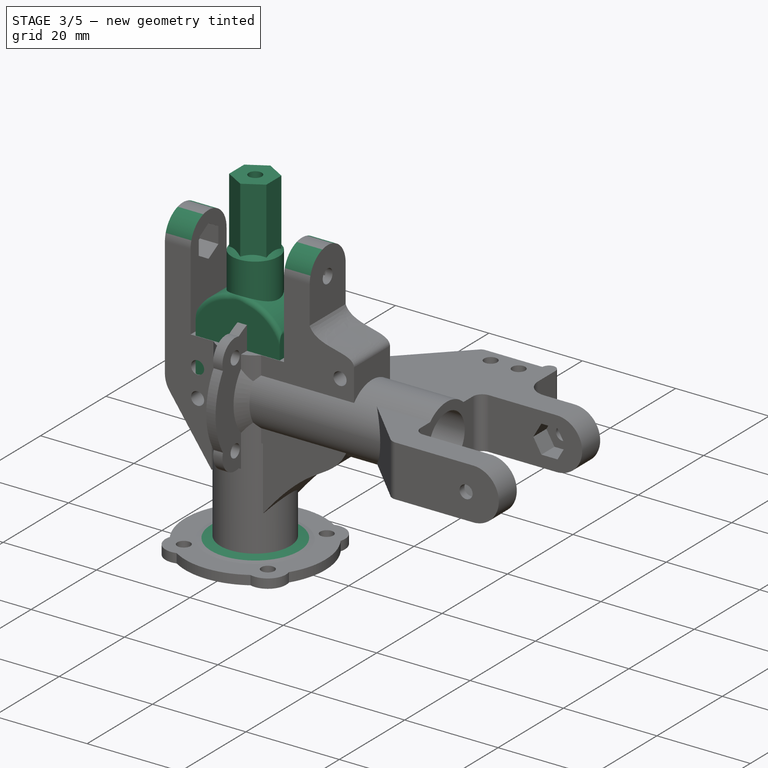
[diagram: stage 3 of 5 — iso view after this stage's code; geometry added in this stage tinted green]
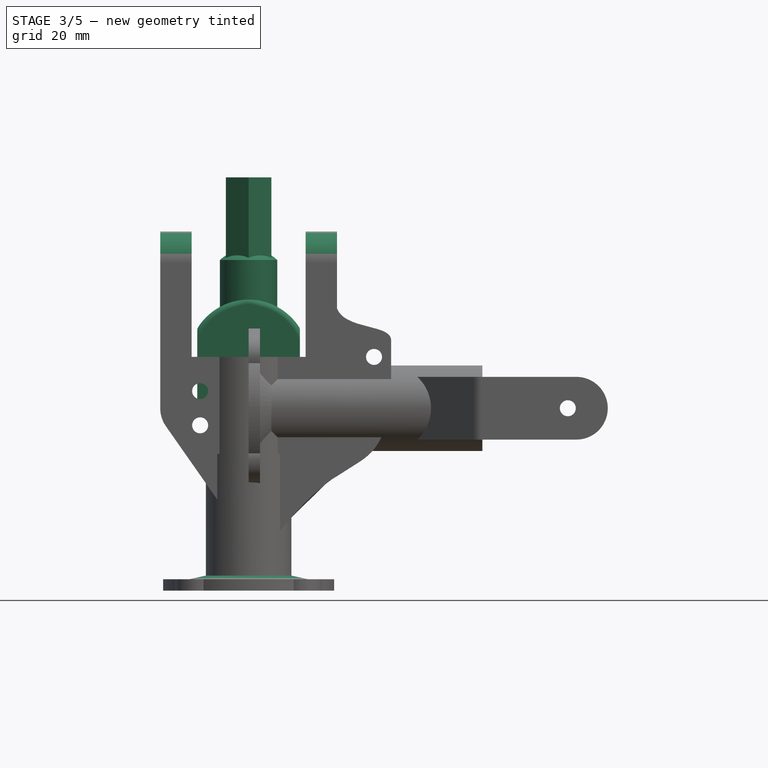
[diagram: stage 3 of 5 — front view after this stage's code; geometry added in this stage tinted green]
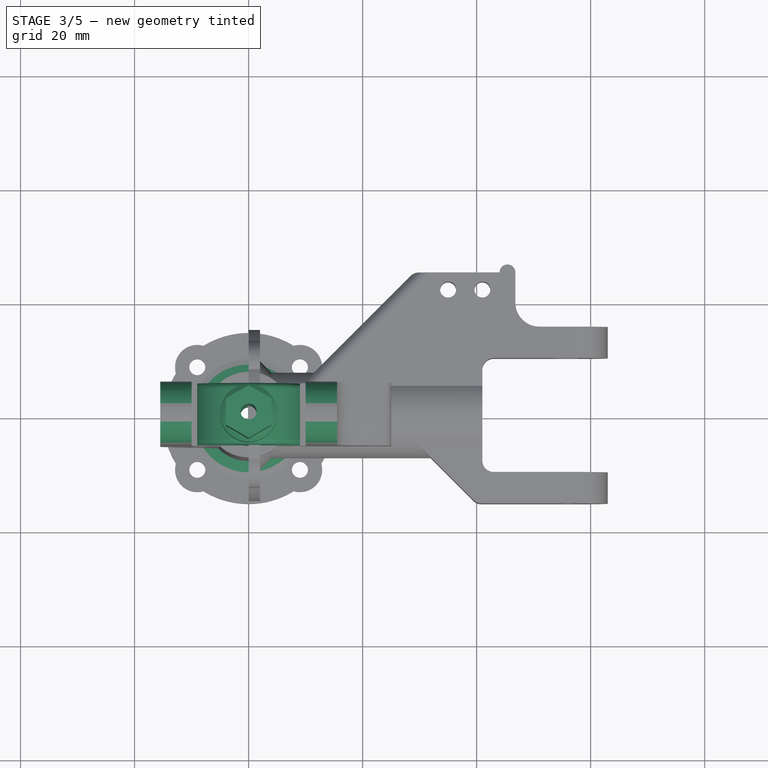
[diagram: stage 3 of 5 — top view after this stage's code; geometry added in this stage tinted green]
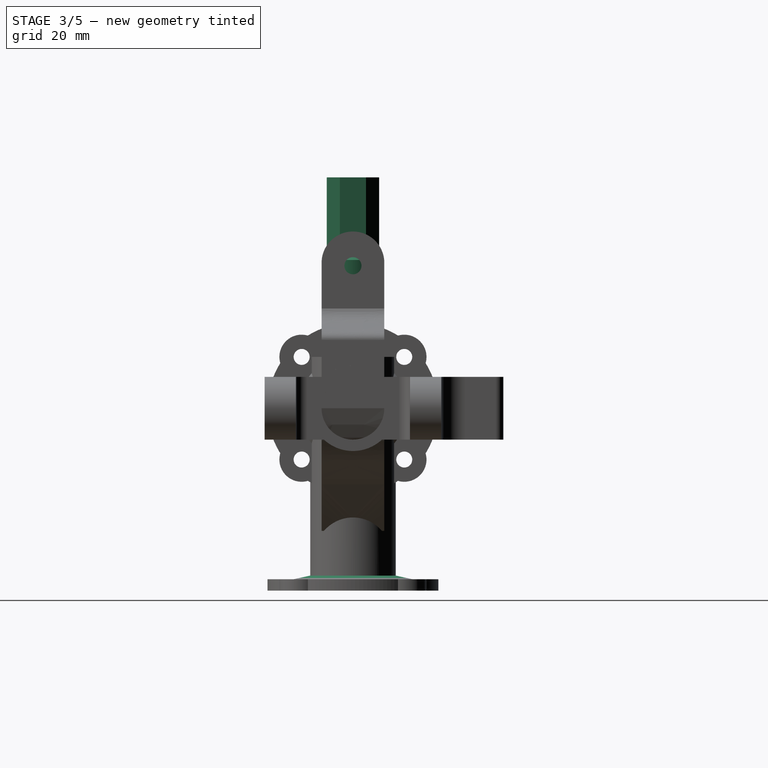
[diagram: stage 3 of 5 — right view after this stage's code; geometry added in this stage tinted green]
FEATURE [PartDesign::Body] Body
  Group = -> [Sketch,Pad,Sketch010,Pocket003]
  Origin = -> Origin
  Tip = -> Pocket003
FEATURE [Sketcher::SketchObject] Sketch011
  FullyConstrained = false
  MapMode = 5
  Placement = pos=(0,0,0) rot=(1,0,0;1.5708rad)
  Support = -> [XZ_Plane001]
  sketch-geometry (3):
    g0: LineSegment StartX=0 StartY=-29.9955 StartZ=0 EndX=10.4238 EndY=-29.9955 EndZ=0
    g1: LineSegment StartX=0 StartY=-29.9955 StartZ=0 EndX=0 EndY=-27.718 EndZ=0
    g2: LineSegment StartX=0 StartY=-27.718 StartZ=0 EndX=10.4238 EndY=-29.9955 EndZ=0
  constraints (6):
    c: PointOnObject(g0,g-2)
    c: Horizontal(g0)
    c: Coincident(g1,g0)
    c: Coincident(g2,g1)
    c: Coincident(g2,g0)
    c: PointOnObject(g1,g-2)
FEATURE [PartDesign::Revolution] Revolution
  Angle = 360
  Axis = (0,-2e-16,1)
  Base = (0,0,0)
  BaseFeature = -> Pocket002
  Profile = -> Sketch011
  ReferenceAxis = -> Sketch011 [V_Axis]
  Reversed = true
FEATURE [Sketcher::SketchObject] Sketch012  label="Sketch012CenterPass"
  FullyConstrained = true
  MapMode = 5
  Support = -> [XY_Plane001]
  expr: Constraints[1] = Spreadsheet.armSupportHoleR
  sketch-geometry (1):
    g0: Circle CenterX=0 CenterY=0 CenterZ=0 NormalX=0 NormalY=0 NormalZ=1 AngleXU=0 Radius=5.5
  constraints (2):
    c: Coincident(g0,g-1)
    c: Radius(g0) = 5.5
FEATURE [PartDesign::Pocket] Pocket004
  BaseFeature = -> Revolution
  Direction = (0,0,-1)
  Length = 5
  Length2 = 5
  Profile = -> Sketch012
  ReferenceAxis = -> Sketch012 [N_Axis]
  Type = 1
FEATURE [Sketcher::SketchObject] Sketch013  label="Sketch013Base"
  FullyConstrained = true
  MapMode = 5
  Placement = pos=(0,0,0) rot=(1,0,0;1.5708rad)
  Support = -> [XZ_Plane002]
  expr: Constraints[10] = Spreadsheet.frontWheelShaftEndLen - Spreadsheet.frontWheelBaseTran
  expr: Constraints[12] = Spreadsheet.frontWheelShaftEndLen - Spreadsheet.frontWheelBaseR
  expr: Constraints[4] = Spreadsheet.frontWheelBaseWidth
  expr: Constraints[9] = Spreadsheet.frontWheelBaseWidth / 2
  sketch-geometry (4):
    g0: LineSegment StartX=9 StartY=14 StartZ=0 EndX=9 EndY=0 EndZ=0
    g1: LineSegment StartX=-9 StartY=0 StartZ=0 EndX=-9 EndY=14 EndZ=0
    g2: ArcOfCircle CenterX=-7e-16 CenterY=8.5 CenterZ=0 NormalX=0 NormalY=0 NormalZ=1 AngleXU=0 Radius=10.5475 StartAngle=0.548549 EndAngle=2.59304
    g3: LineSegment StartX=-9 StartY=0 StartZ=0 EndX=9 EndY=0 EndZ=0
  constraints (13):
    c: Vertical(g0)
    c: Vertical(g1)
    c: Coincident(g0,g2)
    c: Coincident(g1,g2)
    c: DistanceX(g1,g0) = 18
    c: Coincident(g3,g1)
    c: Coincident(g3,g0)
    c: Horizontal(g3)
    c: PointOnObject(g1,g-1)
    c: DistanceX(g1,g-1) = 9
    c: DistanceY(g-1,g0) = 14
    c: Equal(g0,g1)
    c: DistanceY(g-1,g2) = 8.5
FEATURE [PartDesign::Pad] Pad009  label="Pad009base"
  Direction = (0,-1,-2e-16)
  Length = 10.8
  Length2 = 10
  Midplane = true
  Placement = pos=(0,0,0) rot=(1,0,0;1.5708rad)
  Profile = -> Sketch013
  ReferenceAxis = -> Sketch013 [N_Axis]
  Type = 0
  expr: Length = Spreadsheet.frontWheelBasePad
FEATURE [Sketcher::SketchObject] Sketch014  label="Sketch014Shaft"
  FullyConstrained = true
  MapMode = 5
  Support = -> [XY_Plane002]
  expr: Constraints[1] = Spreadsheet.frontWheelShaftR
  sketch-geometry (1):
    g0: Circle CenterX=0 CenterY=0 CenterZ=0 NormalX=0 NormalY=0 NormalZ=1 AngleXU=0 Radius=5.03
  constraints (2):
    c: Coincident(g0,g-1)
    c: Radius(g0) = 5.03
FEATURE [PartDesign::Pad] Pad010
  BaseFeature = -> Pad009
  Direction = (0,0,1)
  Length = 26
  Length2 = 10
  Placement = pos=(0,0,0) rot=(1,0,0;1.5708rad)
  Profile = -> Sketch014
  ReferenceAxis = -> Sketch014 [N_Axis]
  Type = 0
  expr: Length = Spreadsheet.frontWheelToTopOfShaft - Spreadsheet.frontWheelShaftTran
FEATURE [Sketcher::SketchObject] Sketch015  label="Sketch015Hex"
  FullyConstrained = true
  MapMode = 5
  Support = -> [XY_Plane002]
  expr: Constraints[19] = Spreadsheet.frontWheelConnHexR
  sketch-geometry (7):
    g0: LineSegment StartX=0 StartY=4.6 StartZ=0 EndX=-3.98372 EndY=2.3 EndZ=0
    g1: LineSegment StartX=-3.98372 StartY=2.3 StartZ=0 EndX=-3.98372 EndY=-2.3 EndZ=0
    g2: LineSegment StartX=-3.98372 StartY=-2.3 StartZ=0 EndX=1.41323e-11 EndY=-4.6 EndZ=0
    g3: LineSegment StartX=1.41323e-11 StartY=-4.6 StartZ=0 EndX=3.98372 EndY=-2.3 EndZ=0
    g4: LineSegment StartX=3.98372 StartY=-2.3 StartZ=0 EndX=3.98372 EndY=2.3 EndZ=0
    g5: LineSegment StartX=3.98372 StartY=2.3 StartZ=0 EndX=0 EndY=4.6 EndZ=0
    g6: Circle CenterX=0 CenterY=0 CenterZ=0 NormalX=0 NormalY=0 NormalZ=1 AngleXU=0 Radius=4.6
  constraints (16):
    c: Coincident(g0,g1)
    c: Coincident(g1,g2)
    c: Coincident(g2,g3)
    c: Coincident(g3,g4)
    c: Coincident(g4,g5)
    c: Coincident(g5,g0)
    c: Equal(g0, g1-g5) x5
    c: PointOnObject(g0,g6)
    c: PointOnObject(g1,g6)
    c: PointOnObject(g2,g6)
    c: PointOnObject(g3,g6)
    c: PointOnObject(g4,g6)
    c: PointOnObject(g5,g6)
    c: Coincident(g6,g-1)
    c: PointOnObject(g5,g-2)
    c: Radius(g6) = 4.6
FEATURE [PartDesign::Pad] Pad011  label="Pad011EndHex"
  BaseFeature = -> Pad010
  Direction = (0,0,1)
  Length = 40.5
  Length2 = 10
  Placement = pos=(0,0,0) rot=(1,0,0;1.5708rad)
  Profile = -> Sketch015
  ReferenceAxis = -> Sketch015 [N_Axis]
  Type = 0
  expr: Length = Spreadsheet.frontWheelTotalLen
FEATURE [Sketcher::SketchObject] Sketch017
  FullyConstrained = true
  MapMode = 5
  Placement = pos=(0,0,0) rot=(0.57735,0.57735,0.57735;2.0944rad)
  Support = -> [YZ_Plane002]
  expr: Constraints[4] = Spreadsheet.frontWheelShaftR
  expr: Constraints[5] = Spreadsheet.frontWheelShaftTran
  expr: Constraints[6] = Spreadsheet.frontWheelToTopOfShaft - Spreadsheet.frontWheelShaftTran
  sketch-geometry (3):
    g0: LineSegment StartX=4e-16 StartY=26 StartZ=0 EndX=5.03 EndY=26 EndZ=0
    g1: LineSegment StartX=4e-16 StartY=26 StartZ=0 EndX=4e-16 EndY=28 EndZ=0
    g2: ArcOfCircle CenterX=0 CenterY=20.6748 CenterZ=0 NormalX=0 NormalY=0 NormalZ=1 AngleXU=0 Radius=7.32522 StartAngle=0.8139 EndAngle=1.5708
  constraints (10):
    c: PointOnObject(g0,g-2)
    c: Horizontal(g0)
    c: Coincident(g1,g0)
    c: Vertical(g1)
    c: DistanceX(g0,g0) = 5.03
    c: DistanceY(g0,g1) = 2
    c: DistanceY(g-1,g0) = 26
    c: PointOnObject(g2,g-2)
    c: Coincident(g2,g1)
    c: Coincident(g2,g0)
FEATURE [PartDesign::Revolution] Revolution002
  Angle = 360
  Axis = (-2e-16,3e-16,1)
  Base = (0,0,0)
  BaseFeature = -> Pad011
  Placement = pos=(0,0,0) rot=(1,0,0;1.5708rad)
  Profile = -> Sketch017
  ReferenceAxis = -> Sketch017 [V_Axis]
  Reversed = true
FEATURE [Sketcher::SketchObject] Sketch018
  FullyConstrained = true
  MapMode = 5
  Support = -> [XY_Plane002]
  expr: Constraints[1] = Spreadsheet.screwTight
  sketch-geometry (1):
    g0: Circle CenterX=0 CenterY=0 CenterZ=0 NormalX=0 NormalY=0 NormalZ=1 AngleXU=0 Radius=1.4
  constraints (2):
    c: Coincident(g0,g-1)
    c: Radius(g0) = 1.4
FEATURE [PartDesign::Pocket] Pocket005
  BaseFeature = -> Revolution002
  Direction = (0,0,-1)
  Length = 5
  Length2 = 5
  Midplane = true
  Placement = pos=(0,0,0) rot=(1,0,0;1.5708rad)
  Profile = -> Sketch018
  ReferenceAxis = -> Sketch018 [N_Axis]
  Type = 1
FEATURE [PartDesign::Fillet] Fillet003
  Base = -> Pocket005 [Edge10,Edge11,Edge2,Edge9]
  BaseFeature = -> Pocket005
  Placement = pos=(0,0,0) rot=(1,0,0;1.5708rad)
  Radius = 1
  SupportTransform = false
  UseAllEdges = false
FEATURE [PartDesign::Body] Body002  label="Body002FrontWheelConnector"
  Group = -> [Sketch013,Pad009,Sketch014,Pad010,Sketch015,Pad011,Sketch017,Revolution002,Sketch018,Pocket005,Fillet003,Sketch031,Pocket010]
  Origin = -> Origin002
  Tip = -> Pocket010
FEATURE [Sketcher::SketchObject] Sketch032  label="Sketch032TopArmTrim"
  FullyConstrained = true
  MapMode = 5
  Placement = pos=(0,0,0) rot=(0.57735,0.57735,0.57735;2.0944rad)
  Support = -> [YZ_Plane001]
  expr: Constraints[0] = Spreadsheet.armHexCenterToSide
  expr: Constraints[1] = Spreadsheet.armUpperLength - Spreadsheet.armHexCenterToSide
  expr: Constraints[9] = Spreadsheet.armHexCenterToSide + 1
  sketch-geometry (4):
    g0: ArcOfCircle CenterX=1e-16 CenterY=25.5 CenterZ=0 NormalX=0 NormalY=0 NormalZ=1 AngleXU=0 Radius=5.5 StartAngle=0 EndAngle=3.14159
    g1: LineSegment StartX=-5.5 StartY=25.5 StartZ=0 EndX=-5.5 EndY=32 EndZ=0
    g2: LineSegment StartX=5.5 StartY=25.5 StartZ=0 EndX=5.5 EndY=32 EndZ=0
    g3: LineSegment StartX=-5.5 StartY=32 StartZ=0 EndX=5.5 EndY=32 EndZ=0
  constraints (12):
    c: Radius(g0) = 5.5
    c: DistanceY(g-1,g0) = 25.5
    c: Coincident(g1,g0)
    c: Coincident(g2,g0)
    c: Vertical(g2)
    c: Vertical(g1)
    c: Coincident(g3,g1)
    c: Horizontal(g3)
    c: Coincident(g3,g2)
    c: DistanceY(g2,g2) = 6.5
    c: Symmetric(g0,g0,g-2)
    c: DistanceY(g0,g0) = 0
FEATURE [PartDesign::Pocket] Pocket011
  BaseFeature = -> Pocket004
  Direction = (-1,2e-16,-3e-16)
  Length = 25
  Length2 = 5
  Midplane = true
  Profile = -> Sketch032
  ReferenceAxis = -> Sketch032 [N_Axis]
  Type = 1
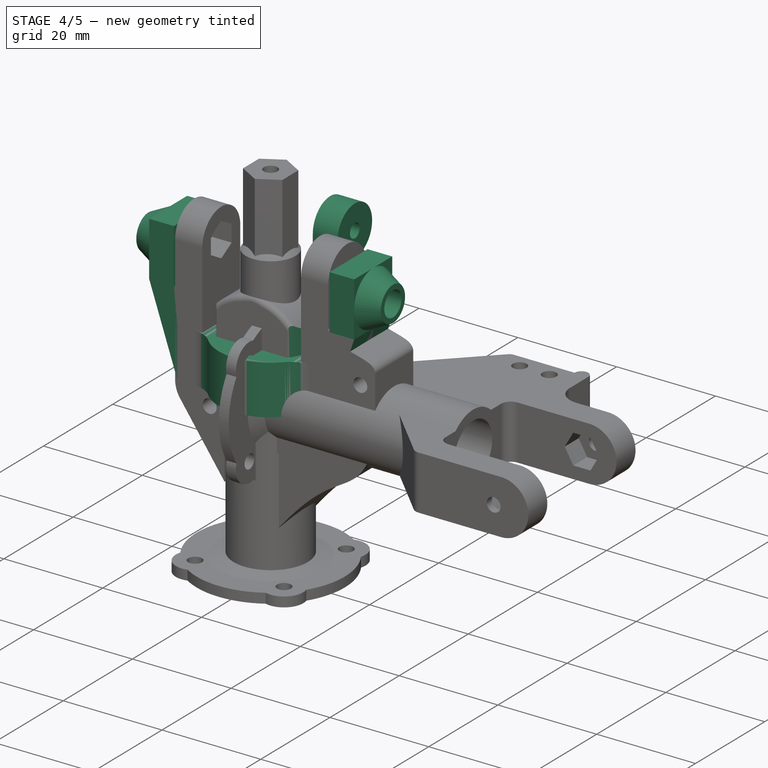
[diagram: stage 4 of 5 — iso view after this stage's code; geometry added in this stage tinted green]
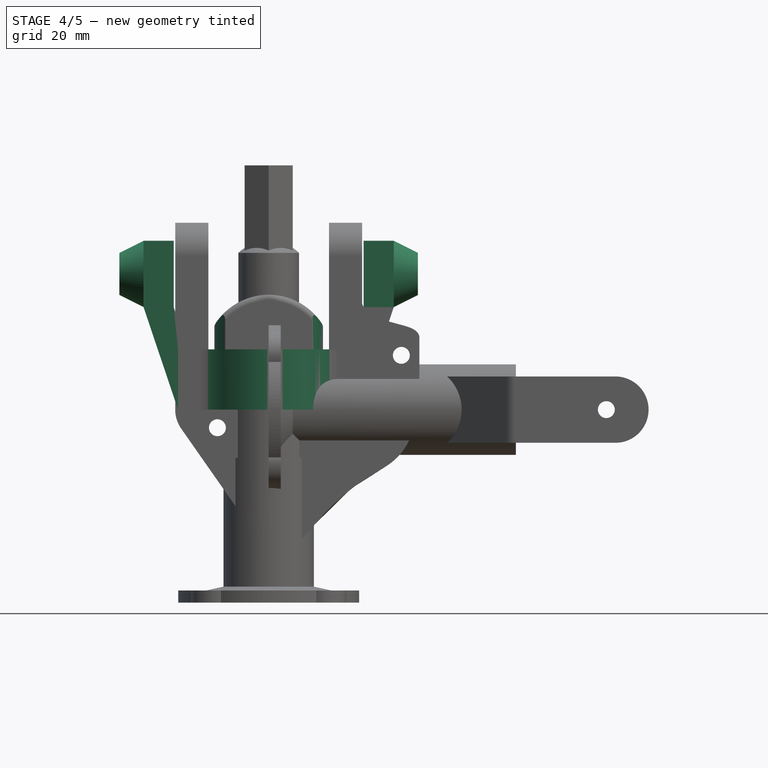
[diagram: stage 4 of 5 — front view after this stage's code; geometry added in this stage tinted green]
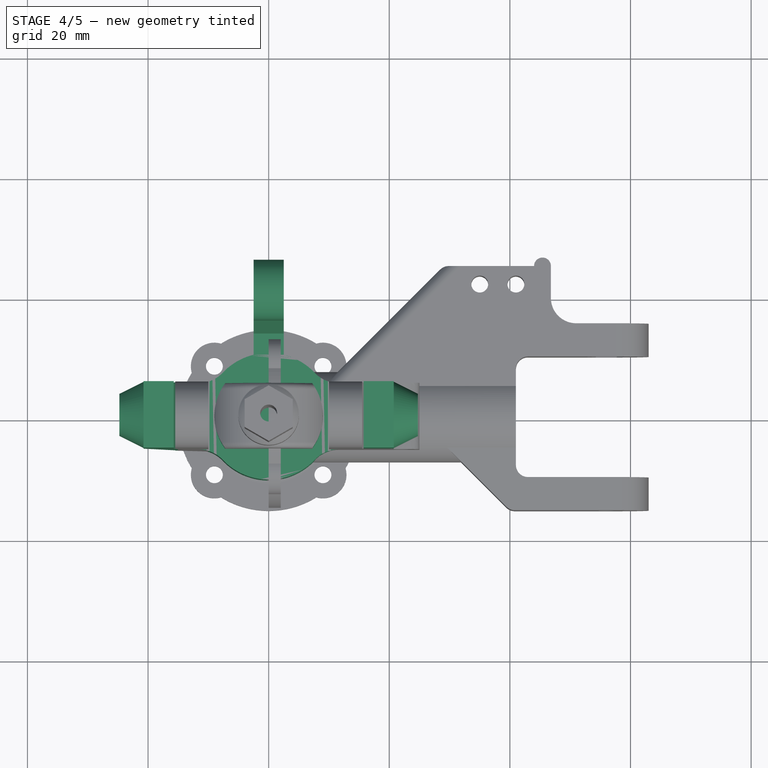
[diagram: stage 4 of 5 — top view after this stage's code; geometry added in this stage tinted green]
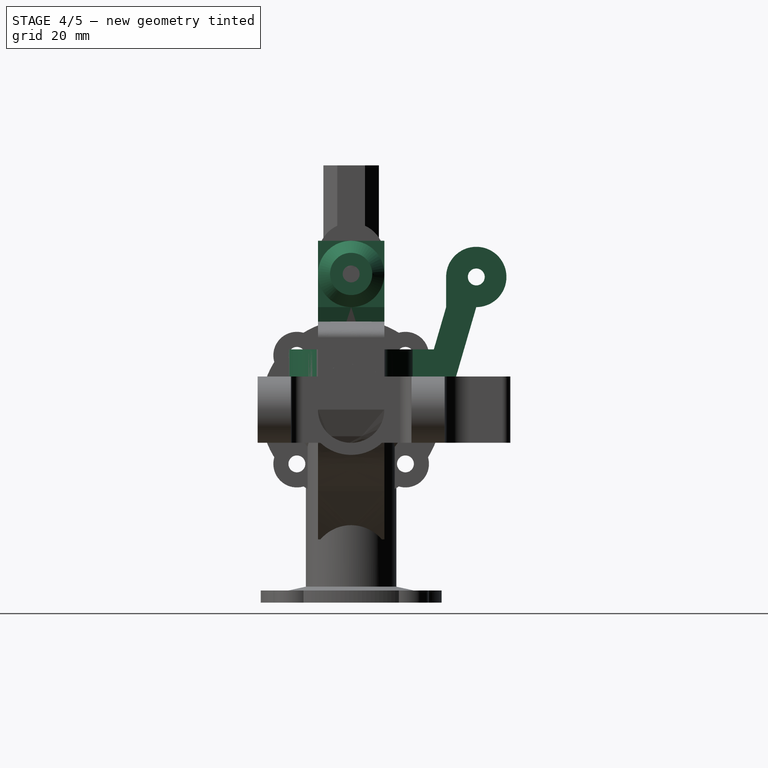
[diagram: stage 4 of 5 — right view after this stage's code; geometry added in this stage tinted green]
FEATURE [Sketcher::SketchObject] Sketch019
  FullyConstrained = true
  MapMode = 5
  Support = -> [XY_Plane003]
  expr: Constraints[1] = Spreadsheet.turnerWheelLimitR - 3
  expr: Constraints[3] = Spreadsheet.turnerBaseR
  expr: Constraints[46] = Spreadsheet.turnerArmWidth
  expr: Constraints[52] = Spreadsheet.turnerSterringArmWidth
  sketch-geometry (21):
    g0: Circle CenterX=0 CenterY=0 CenterZ=0 NormalX=0 NormalY=0 NormalZ=1 AngleXU=0 Radius=16
    g1: ArcOfCircle CenterX=0 CenterY=0 CenterZ=0 NormalX=0 NormalY=0 NormalZ=1 AngleXU=0 Radius=10.5 StartAngle=3.89963 EndAngle=5.52514
    g2: LineSegment StartX=-15.025 StartY=5.5 StartZ=0 EndX=-11.619 EndY=5.5 EndZ=0
    g3: LineSegment StartX=15.025 StartY=5.5 StartZ=0 EndX=15.025 EndY=-5.5 EndZ=0
    g4: LineSegment StartX=15.025 StartY=-5.5 StartZ=0 EndX=11.6189 EndY=-5.5 EndZ=0
    g5: LineSegment StartX=-15.025 StartY=-5.5 StartZ=0 EndX=-15.025 EndY=5.5 EndZ=0
    g6: ArcOfCircle CenterX=-11.619 CenterY=11 CenterZ=0 NormalX=0 NormalY=0 NormalZ=1 AngleXU=0 Radius=5.5 StartAngle=4.71239 EndAngle=5.52514
    g7: LineSegment StartX=-11.619 StartY=11 StartZ=0 EndX=11.619 EndY=11 EndZ=0
    g8: LineSegment StartX=11.619 StartY=11 StartZ=0 EndX=11.619 EndY=-11 EndZ=0
    g9: LineSegment StartX=11.619 StartY=-11 StartZ=0 EndX=-11.619 EndY=-11 EndZ=0
    g10: LineSegment StartX=-11.619 StartY=-11 StartZ=0 EndX=-11.619 EndY=11 EndZ=0
    g11: ArcOfCircle CenterX=11.619 CenterY=11 CenterZ=0 NormalX=0 NormalY=0 NormalZ=1 AngleXU=0 Radius=5.5 StartAngle=3.89963 EndAngle=4.71239
    g12: ArcOfCircle CenterX=11.619 CenterY=-11 CenterZ=0 NormalX=0 NormalY=0 NormalZ=1 AngleXU=0 Radius=5.5 StartAngle=1.5708 EndAngle=2.38355
    g13: LineSegment StartX=11.619 StartY=5.5 StartZ=0 EndX=15.025 EndY=5.5 EndZ=0
    g14: ArcOfCircle CenterX=-11.619 CenterY=-11 CenterZ=0 NormalX=0 NormalY=0 NormalZ=1 AngleXU=0 Radius=5.5 StartAngle=0.758041 EndAngle=1.5708
    g15: LineSegment StartX=-11.619 StartY=-5.5 StartZ=0 EndX=-15.025 EndY=-5.5 EndZ=0
    g16: ArcOfCircle CenterX=0 CenterY=0 CenterZ=0 NormalX=0 NormalY=0 NormalZ=1 AngleXU=0 Radius=10.5 StartAngle=0.75804 EndAngle=1.33039
    g17: LineSegment StartX=-2.5 StartY=15.8035 StartZ=0 EndX=2.5 EndY=15.8035 EndZ=0
    g18: LineSegment StartX=-2.5 StartY=15.8035 StartZ=0 EndX=-2.5 EndY=10.198 EndZ=0
    g19: LineSegment StartX=2.5 StartY=15.8035 StartZ=0 EndX=2.5 EndY=10.198 EndZ=0
    g20: ArcOfCircle CenterX=0 CenterY=0 CenterZ=0 NormalX=0 NormalY=0 NormalZ=1 AngleXU=0 Radius=10.5 StartAngle=1.8112 EndAngle=2.38355
  constraints (61):
    c: Coincident(g0,g-1)
    c: Radius(g0) = 16
    c: Coincident(g1,g0)
    c: Radius(g1) = 10.5
    c: Coincident(g13,g3)
    c: Coincident(g3,g4)
    c: Coincident(g15,g5)
    c: Coincident(g5,g2)
    c: Horizontal(g2)
    c: Horizontal(g4)
    c: Vertical(g3)
    c: Vertical(g5)
    c: PointOnObject(g3,g0)
    c: PointOnObject(g13,g0)
    c: PointOnObject(g6,g0)
    c: Coincident(g7,g6)
    c: PointOnObject(g7,g0)
    c: Horizontal(g7)
    c: Coincident(g8,g7)
    c: PointOnObject(g8,g0)
    c: Vertical(g8)
    c: Coincident(g9,g8)
    c: PointOnObject(g9,g0)
    c: Horizontal(g9)
    c: Coincident(g10,g9)
    c: Vertical(g10)
    c: Coincident(g11,g7)
    c: Tangent(g11,g2)
    c: Coincident(g12,g8)
    c: Tangent(g6,g2) = -1.5708
    c: Coincident(g20,g6) = 1.5708
    c: Tangent(g1,g14) = 1.5708
    c: Equal(g1,g16)
    c: Tangent(g1,g12) = 1.5708
    c: Coincident(g1,g16)
    c: Coincident(g11,g16)
    c: Coincident(g11,g13)
    c: Horizontal(g15)
    c: Coincident(g14,g15)
    c: Horizontal(g13)
    c: Coincident(g4,g12)
    c: PointOnObject(g2,g10)
    c: PointOnObject(g2,g0)
    c: PointOnObject(g10,g0)
    c: PointOnObject(g14,g10)
    c: PointOnObject(g11,g8)
    c: DistanceY(g3,g3) = 11
    c: Coincident(g14,g9)
    c: DistanceX(g6,g1) = 0
    c: PointOnObject(g17,g0)
    c: PointOnObject(g17,g0)
    c: Horizontal(g17)
    c: DistanceX(g17,g17) = 5
    c: Coincident(g18,g17)
    c: Vertical(g18)
    c: Coincident(g19,g17)
    c: Vertical(g19)
    c: Equal(g16,g20)
    c: Coincident(g16,g19)
    c: Coincident(g20,g18)
    c: Coincident(g16,g20)
FEATURE [PartDesign::Pad] Pad012
  Direction = (0,0,1)
  Length = 10
  Length2 = 10
  Profile = -> Sketch019
  ReferenceAxis = -> Sketch019 [N_Axis]
  Type = 0
  expr: Length = Spreadsheet.turnerBasePad
FEATURE [Sketcher::SketchObject] Sketch020  label="Sketch020BaseConns"
  ExternalGeometry = -> [Pad012]
  FullyConstrained = true
  MapMode = 5
  Support = -> [XY_Plane003]
  expr: Constraints[27] = Spreadsheet.turnerSterringArmWidth
  expr: Constraints[28] = Spreadsheet.turnerSterringArmWidth
  expr: Constraints[29] = Spreadsheet.turnerSterringArmWidth
  sketch-geometry (12):
    g0: LineSegment StartX=-15.025 StartY=5.5 StartZ=0 EndX=-10.025 EndY=5.5 EndZ=0
    g1: LineSegment StartX=-10.025 StartY=5.5 StartZ=0 EndX=-10.025 EndY=-5.5 EndZ=0
    g2: LineSegment StartX=-10.025 StartY=-5.5 StartZ=0 EndX=-15.025 EndY=-5.5 EndZ=0
    g3: LineSegment StartX=-15.025 StartY=-5.5 StartZ=0 EndX=-15.025 EndY=5.5 EndZ=0
    g4: LineSegment StartX=-2.5 StartY=15.8035 StartZ=0 EndX=2.5 EndY=15.8035 EndZ=0
    g5: LineSegment StartX=2.5 StartY=15.8035 StartZ=0 EndX=2.5 EndY=10.8035 EndZ=0
    g6: LineSegment StartX=2.5 StartY=10.8035 StartZ=0 EndX=-2.5 EndY=10.8035 EndZ=0
    g7: LineSegment StartX=-2.5 StartY=10.8035 StartZ=0 EndX=-2.5 EndY=15.8035 EndZ=0
    g8: LineSegment StartX=15.025 StartY=5.5 StartZ=0 EndX=10.025 EndY=5.5 EndZ=0
    g9: LineSegment StartX=10.025 StartY=5.5 StartZ=0 EndX=10.025 EndY=-5.5 EndZ=0
    g10: LineSegment StartX=10.025 StartY=-5.5 StartZ=0 EndX=15.025 EndY=-5.5 EndZ=0
    g11: LineSegment StartX=15.025 StartY=-5.5 StartZ=0 EndX=15.025 EndY=5.5 EndZ=0
  constraints (30):
    c: Coincident(g0,g1)
    c: Coincident(g1,g2)
    c: Coincident(g2,g3)
    c: Coincident(g3,g0)
    c: Horizontal(g0)
    c: Horizontal(g2)
    c: Vertical(g1)
    c: Coincident(g0,g-3)
    c: Coincident(g4,g5)
    c: Coincident(g5,g6)
    c: Coincident(g6,g7)
    c: Coincident(g7,g4)
    c: Horizontal(g6)
    c: Vertical(g5)
    c: Vertical(g7)
    c: Coincident(g4,g-4)
    c: Coincident(g8,g9)
    c: Coincident(g9,g10)
    c: Coincident(g10,g11)
    c: Coincident(g11,g8)
    c: Horizontal(g8)
    c: Horizontal(g10)
    c: Vertical(g9)
    c: Coincident(g8,g-5)
    c: Coincident(g2,g-3)
    c: Coincident(g10,g-5)
    c: Coincident(g4,g-4)
    c: DistanceY(g5,g5) = 5
    c: DistanceX(g0,g0) = 5
    c: DistanceX(g8,g8) = 5
FEATURE [Sketcher::SketchObject] Sketch021  label="Sketch021UpperConns"
  AttachmentOffset = pos=(0,0,17) rot=(0,0,1;0rad)
  FullyConstrained = true
  MapMode = 5
  Placement = pos=(0,0,17) rot=(0,0,1;0rad)
  Support = -> [XY_Plane003]
  expr: .AttachmentOffset.Base.z = Spreadsheet.turnerArmWheelClearianceHeight
  expr: Constraints[20] = Spreadsheet.turnerArmWidth
  expr: Constraints[21] = Spreadsheet.turnerArmWidth
  expr: Constraints[25] = Spreadsheet.turnerSterringArmWidth
  expr: Constraints[26] = Spreadsheet.turnerSterringArmWidth
  expr: Constraints[27] = Spreadsheet.turnerSterringArmWidth
  expr: Constraints[28] = Spreadsheet.turnerSterringArmWidth
  expr: Constraints[30] = Spreadsheet.turnerArmInnerSep / 2
  expr: Constraints[31] = Spreadsheet.turnerArmInnerSep / 2
  expr: Constraints[32] = Spreadsheet.turnerArmInnerSep / 2
  sketch-geometry (12):
    g0: LineSegment StartX=-20.75 StartY=5.5 StartZ=0 EndX=-15.75 EndY=5.5 EndZ=0
    g1: LineSegment StartX=-15.75 StartY=5.5 StartZ=0 EndX=-15.75 EndY=-5.5 EndZ=0
    g2: LineSegment StartX=-15.75 StartY=-5.5 StartZ=0 EndX=-20.75 EndY=-5.5 EndZ=0
    g3: LineSegment StartX=-20.75 StartY=-5.5 StartZ=0 EndX=-20.75 EndY=5.5 EndZ=0
    g4: LineSegment StartX=15.75 StartY=5.5 StartZ=0 EndX=20.75 EndY=5.5 EndZ=0
    g5: LineSegment StartX=20.75 StartY=5.5 StartZ=0 EndX=20.75 EndY=-5.5 EndZ=0
    g6: LineSegment StartX=20.75 StartY=-5.5 StartZ=0 EndX=15.75 EndY=-5.5 EndZ=0
    g7: LineSegment StartX=15.75 StartY=-5.5 StartZ=0 EndX=15.75 EndY=5.5 EndZ=0
    g8: LineSegment StartX=-2.5 StartY=20.75 StartZ=0 EndX=2.5 EndY=20.75 EndZ=0
    g9: LineSegment StartX=2.5 StartY=20.75 StartZ=0 EndX=2.5 EndY=15.75 EndZ=0
    g10: LineSegment StartX=2.5 StartY=15.75 StartZ=0 EndX=-2.5 EndY=15.75 EndZ=0
    g11: LineSegment StartX=-2.5 StartY=15.75 StartZ=0 EndX=-2.5 EndY=20.75 EndZ=0
  constraints (33):
    c: Coincident(g0,g1)
    c: Coincident(g1,g2)
    c: Coincident(g2,g3)
    c: Coincident(g3,g0)
    c: Horizontal(g0)
    c: Horizontal(g2)
    c: Vertical(g1)
    c: Coincident(g4,g5)
    c: Coincident(g5,g6)
    c: Coincident(g6,g7)
    c: Coincident(g7,g4)
    c: Horizontal(g4)
    c: Horizontal(g6)
    c: Coincident(g8,g9)
    c: Coincident(g9,g10)
    c: Coincident(g10,g11)
    c: Coincident(g11,g8)
    c: Horizontal(g10)
    c: Vertical(g9)
    c: Vertical(g11)
    c: DistanceY(g7,g7) = 11
    c: DistanceY(g3,g3) = 11
    c: Symmetric(g4,g5,g-1)
    c: Symmetric(g0,g2,g-1)
    c: Symmetric(g8,g8,g-2)
    c: DistanceX(g8,g8) = 5
    c: DistanceX(g0,g0) = 5
    c: DistanceX(g4,g4) = 5
    c: DistanceY(g9,g9) = 5
    c: Vertical(g7)
    c: DistanceX(g-1,g4) = 15.75
    c: DistanceX(g0,g-1) = 15.75
    c: DistanceY(g-1,g9) = 15.75
FEATURE [Sketcher::SketchObject] Sketch022  label="Sketch022SidArm"
  ExternalGeometry = -> [Sketch021,Sketch020]
  FullyConstrained = true
  MapMode = 5
  Placement = pos=(0,0,0) rot=(1,0,0;1.5708rad)
  Support = -> [XZ_Plane003]
  sketch-geometry (8):
    g0: LineSegment StartX=-20.75 StartY=17 StartZ=0 EndX=-15.75 EndY=17 EndZ=0
    g1: LineSegment StartX=-15.75 StartY=17 StartZ=0 EndX=-10.025 EndY=0 EndZ=0
    g2: LineSegment StartX=-10.025 StartY=0 StartZ=0 EndX=-15.025 EndY=0 EndZ=0
    g3: LineSegment StartX=-15.025 StartY=0 StartZ=0 EndX=-20.75 EndY=17 EndZ=0
    g4: LineSegment StartX=20.75 StartY=17 StartZ=0 EndX=15.75 EndY=17 EndZ=0
    g5: LineSegment StartX=15.75 StartY=17 StartZ=0 EndX=10.025 EndY=0 EndZ=0
    g6: LineSegment StartX=10.025 StartY=0 StartZ=0 EndX=15.025 EndY=-1.2e-15 EndZ=0
    g7: LineSegment StartX=15.025 StartY=-1.2e-15 StartZ=0 EndX=20.75 EndY=17 EndZ=0
  constraints (16):
    c: Coincident(g0,g1)
    c: Coincident(g1,g2)
    c: Coincident(g2,g3)
    c: Coincident(g3,g0)
    c: Coincident(g0,g-3)
    c: Coincident(g1,g-4)
    c: Coincident(g2,g-4)
    c: Coincident(g0,g-3)
    c: Coincident(g4,g5)
    c: Coincident(g5,g6)
    c: Coincident(g6,g7)
    c: Coincident(g7,g4)
    c: Coincident(g4,g-5)
    c: Coincident(g5,g-6)
    c: Coincident(g-5,g4)
    c: Coincident(g6,g-6)
FEATURE [PartDesign::Pad] Pad013
  BaseFeature = -> Pad012
  Direction = (0,-1,-2e-16)
  Length = 11
  Length2 = 10
  Midplane = true
  Profile = -> Sketch022
  ReferenceAxis = -> Sketch022 [N_Axis]
  Type = 0
  expr: Length = Spreadsheet.turnerArmWidth
FEATURE [Sketcher::SketchObject] Sketch023  label="Sketch023StearingArm"
  ExternalGeometry = -> [Sketch021,Sketch020]
  FullyConstrained = true
  MapMode = 5
  Placement = pos=(0,0,0) rot=(0.57735,0.57735,0.57735;2.0944rad)
  Support = -> [YZ_Plane003]
  sketch-geometry (4):
    g0: LineSegment StartX=20.75 StartY=17 StartZ=0 EndX=15.75 EndY=17 EndZ=0
    g1: LineSegment StartX=15.75 StartY=17 StartZ=0 EndX=10.8035 EndY=3.6e-15 EndZ=0
    g2: LineSegment StartX=10.8035 StartY=3.6e-15 StartZ=0 EndX=15.8035 EndY=3.7e-15 EndZ=0
    g3: LineSegment StartX=15.8035 StartY=3.7e-15 StartZ=0 EndX=20.75 EndY=17 EndZ=0
  constraints (8):
    c: Coincident(g0,g1)
    c: Coincident(g1,g2)
    c: Coincident(g2,g3)
    c: Coincident(g3,g0)
    c: Coincident(g0,g-3)
    c: Coincident(g1,g-4)
    c: Coincident(g0,g-3)
    c: Coincident(g2,g-4)
FEATURE [PartDesign::Pad] Pad014
  BaseFeature = -> Pad013
  Direction = (1,-2e-16,3e-16)
  Length = 5
  Length2 = 10
  Midplane = true
  Profile = -> Sketch023
  ReferenceAxis = -> Sketch023 [N_Axis]
  Type = 0
  expr: Length = Spreadsheet.turnerSterringArmWidth
FEATURE [Sketcher::SketchObject] Sketch024  label="Sketch024ArmBudge"
  AttachmentOffset = pos=(0,0,17) rot=(0,0,1;0rad)
  ExternalGeometry = -> [Sketch021]
  FullyConstrained = true
  MapMode = 5
  Placement = pos=(0,0,17) rot=(0,0,1;0rad)
  Support = -> [XY_Plane003]
  expr: .AttachmentOffset.Base.z = Spreadsheet.turnerArmWheelClearianceHeight
  sketch-geometry (8):
    g0: LineSegment StartX=-20.75 StartY=5.5 StartZ=0 EndX=-15.75 EndY=5.5 EndZ=0
    g1: LineSegment StartX=-15.75 StartY=5.5 StartZ=0 EndX=-15.75 EndY=-5.5 EndZ=0
    g2: LineSegment StartX=-15.75 StartY=-5.5 StartZ=0 EndX=-20.75 EndY=-5.5 EndZ=0
    g3: LineSegment StartX=-20.75 StartY=-5.5 StartZ=0 EndX=-20.75 EndY=5.5 EndZ=0
    g4: LineSegment StartX=15.75 StartY=5.5 StartZ=0 EndX=20.75 EndY=5.5 EndZ=0
    g5: LineSegment StartX=20.75 StartY=5.5 StartZ=0 EndX=20.75 EndY=-5.5 EndZ=0
    g6: LineSegment StartX=20.75 StartY=-5.5 StartZ=0 EndX=15.75 EndY=-5.5 EndZ=0
    g7: LineSegment StartX=15.75 StartY=-5.5 StartZ=0 EndX=15.75 EndY=5.5 EndZ=0
  constraints (20):
    c: Coincident(g0,g1)
    c: Coincident(g1,g2)
    c: Coincident(g2,g3)
    c: Coincident(g3,g0)
    c: Horizontal(g0)
    c: Horizontal(g2)
    c: Vertical(g1)
    c: Vertical(g3)
    c: Coincident(g0,g-3)
    c: Coincident(g1,g-4)
    c: Coincident(g4,g5)
    c: Coincident(g5,g6)
    c: Coincident(g6,g7)
    c: Coincident(g7,g4)
    c: Horizontal(g4)
    c: Horizontal(g6)
    c: Vertical(g5)
    c: Vertical(g7)
    c: Coincident(g4,g-5)
    c: Coincident(g5,g-6)
FEATURE [PartDesign::Pad] Pad015
  BaseFeature = -> Pad014
  Direction = (0,0,1)
  Length = 11
  Length2 = 10
  Profile = -> Sketch024
  ReferenceAxis = -> Sketch024 [N_Axis]
  Type = 0
  expr: Length = Spreadsheet.turnerArmWidth
FEATURE [Sketcher::SketchObject] Sketch025  label="Sketch025SteeringHead"
  FullyConstrained = true
  MapMode = 5
  Placement = pos=(0,0,0) rot=(0.57735,0.57735,0.57735;2.0944rad)
  Support = -> [YZ_Plane003]
  expr: Constraints[0] = Spreadsheet.turnerArmInnerSep / 2 + Spreadsheet.turnerSterringArmWidth
  expr: Constraints[10] = Spreadsheet.turnerArmWheelClearianceHeight
  expr: Constraints[11] = Spreadsheet.turnerSterringArmWidth
  expr: Constraints[13] = Spreadsheet.screwTight
  expr: Constraints[6] = Spreadsheet.turnerSterringArmWidth
  sketch-geometry (5):
    g0: ArcOfCircle CenterX=20.75 CenterY=22 CenterZ=0 NormalX=0 NormalY=0 NormalZ=1 AngleXU=0 Radius=5 StartAngle=4.71239 EndAngle=9.42478
    g1: LineSegment StartX=20.75 StartY=22 StartZ=0 EndX=20.75 EndY=17 EndZ=0
    g2: LineSegment StartX=20.75 StartY=17 StartZ=0 EndX=15.75 EndY=17 EndZ=0
    g3: LineSegment StartX=15.75 StartY=17 StartZ=0 EndX=15.75 EndY=22 EndZ=0
    g4: Circle CenterX=20.75 CenterY=22 CenterZ=0 NormalX=0 NormalY=0 NormalZ=1 AngleXU=0 Radius=1.4
  constraints (14):
    c: DistanceX(g-1,g0) = 20.75
    c: Coincident(g1,g0)
    c: Coincident(g1,g0)
    c: Vertical(g1)
    c: Coincident(g2,g0)
    c: Horizontal(g2)
    c: DistanceX(g2,g2) = 5
    c: Coincident(g3,g2)
    c: Vertical(g3)
    c: Coincident(g0,g3)
    c: DistanceY(g-1,g0) = 17
    c: Radius(g0) = 5
    c: Coincident(g4,g0)
    c: Radius(g4) = 1.4
FEATURE [PartDesign::Pad] Pad016  label="Pad016steeringHead"
  BaseFeature = -> Pad015
  Direction = (1,-2e-16,3e-16)
  Length = 5
  Length2 = 10
  Midplane = true
  Profile = -> Sketch025
  ReferenceAxis = -> Sketch025 [N_Axis]
  Type = 0
  expr: Length = Spreadsheet.turnerSterringArmWidth
FEATURE [Sketcher::SketchObject] Sketch026  label="Sketch026TopScrewHole"
  ExternalGeometry = -> [Pad016]
  FullyConstrained = true
  MapMode = 5
  Placement = pos=(0,0,0) rot=(0.57735,0.57735,0.57735;2.0944rad)
  Support = -> [YZ_Plane003]
  expr: Constraints[1] = Spreadsheet.screwTight
  expr: Constraints[2] = Spreadsheet.turnerArmHeadScrewY
  sketch-geometry (1):
    g0: Circle CenterX=0 CenterY=22.5 CenterZ=0 NormalX=0 NormalY=0 NormalZ=1 AngleXU=0 Radius=1.4
  constraints (3):
    c: PointOnObject(g0,g-2)
    c: Radius(g0) = 1.4
    c: DistanceY(g-1,g0) = 22.5
FEATURE [PartDesign::Pocket] Pocket006
  BaseFeature = -> Pad016
  Direction = (-1,2e-16,-3e-16)
  Length = 5
  Length2 = 5
  Midplane = true
  Profile = -> Sketch026
  ReferenceAxis = -> Sketch026 [N_Axis]
  Type = 1
FEATURE [Sketcher::SketchObject] Sketch027  label="Sketch027ArmScrewHeadHole"
  AttachmentOffset = pos=(0,22.5,0) rot=(0,0,1;0rad)
  ExternalGeometry = -> [Pocket006]
  FullyConstrained = true
  MapMode = 5
  Placement = pos=(0,-5e-15,22.5) rot=(1,0,0;1.5708rad)
  Support = -> [XZ_Plane003]
  expr: .AttachmentOffset.Base.y = Spreadsheet.turnerArmHeadScrewY
  expr: Constraints[15] = Spreadsheet.turnerArmHeadScrewCapTopHeight
  expr: Constraints[16] = Spreadsheet.turnerArmHeadScrewCapHeight
  expr: Constraints[17] = Spreadsheet.turnerArmOuterBase
  expr: Constraints[19] = Spreadsheet.turnerArmHeadScrewCapR
  expr: Constraints[21] = Spreadsheet.turnerArmHeadScrewCapR
  expr: Constraints[6] = Spreadsheet.turnerArmHeadScrewCapHeight
  expr: Constraints[7] = Spreadsheet.turnerArmWidth / 2 - Spreadsheet.turnerArmHeadScrewCapR
  expr: Constraints[8] = Spreadsheet.turnerArmOuterBase
  expr: Constraints[9] = Spreadsheet.turnerArmHeadScrewCapTopHeight
  sketch-geometry (8):
    g0: LineSegment StartX=20.75 StartY=2.5 StartZ=0 EndX=20.75 EndY=5.5 EndZ=0
    g1: LineSegment StartX=20.75 StartY=5.5 StartZ=0 EndX=24.75 EndY=3.5 EndZ=0
    g2: LineSegment StartX=24.75 StartY=3.5 StartZ=0 EndX=24.75 EndY=2.5 EndZ=0
    g3: LineSegment StartX=24.75 StartY=2.5 StartZ=0 EndX=20.75 EndY=2.5 EndZ=0
    g4: LineSegment StartX=-20.75 StartY=2.5 StartZ=0 EndX=-24.75 EndY=2.5 EndZ=0
    g5: LineSegment StartX=-24.75 StartY=2.5 StartZ=0 EndX=-24.75 EndY=3.5 EndZ=0
    g6: LineSegment StartX=-24.75 StartY=3.5 StartZ=0 EndX=-20.75 EndY=5.5 EndZ=0
    g7: LineSegment StartX=-20.75 StartY=5.5 StartZ=0 EndX=-20.75 EndY=2.5 EndZ=0
  constraints (23):
    c: Coincident(g1,g0)
    c: Coincident(g2,g1)
    c: Coincident(g3,g2)
    c: Coincident(g3,g0)
    c: Vertical(g0)
    c: Vertical(g2)
    c: DistanceX(g3,g3) = 4
    c: DistanceY(g0,g0) = 3
    c: DistanceX(g-1,g0) = 20.75
    c: DistanceY(g2,g2) = 1
    c: Coincident(g5,g4)
    c: Coincident(g6,g5)
    c: Coincident(g7,g6)
    c: Coincident(g7,g4)
    c: Vertical(g5)
    c: DistanceY(g5,g5) = 1
    c: DistanceX(g4,g4) = 4
    c: DistanceX(g4,g-1) = 20.75
    c: Horizontal(g4)
    c: DistanceY(g-1,g4) = 2.5
    c: Coincident(g6,g-3)
    c: DistanceY(g-1,g0) = 2.5
    c: Horizontal(g3)
FEATURE [PartDesign::Revolution] Revolution003
  Angle = 360
  Axis = (1,0,0)
  Base = (0,-5e-15,22.5)
  BaseFeature = -> Pocket006
  Profile = -> Sketch027
  ReferenceAxis = -> Sketch027 [H_Axis]
FEATURE [PartDesign::Body] Body003  label="Body003FrontWheelTurner"
  Group = -> [Sketch019,Pad012,Sketch020,Sketch021,Sketch022,Pad013,Sketch023,Pad014,Sketch024,Pad015,Sketch025,Pad016,Sketch026,Pocket006,Sketch027,Revolution003,Sketch028,Pocket007,Sketch029,Pocket008,Fillet006,Fillet007,Fillet008,Sketch030,Pocket009]
  Origin = -> Origin003
  Tip = -> Pocket009
FEATURE [Sketcher::SketchObject] Sketch031  label="Sketch031BaseRound"
  FullyConstrained = false
  MapMode = 5
  Support = -> [XY_Plane002]
  expr: Constraints[1] = Spreadsheet.frontWheelBaseWidth / 2
  sketch-geometry (2):
    g0: Circle CenterX=0 CenterY=0 CenterZ=0 NormalX=0 NormalY=0 NormalZ=1 AngleXU=0 Radius=9
    g1: Circle CenterX=0 CenterY=0 CenterZ=0 NormalX=0 NormalY=0 NormalZ=1 AngleXU=0 Radius=14.1331
  constraints (3):
    c: Coincident(g0,g-1)
    c: Radius(g0) = 9
    c: Coincident(g1,g0)
FEATURE [PartDesign::Pocket] Pocket010
  BaseFeature = -> Fillet003
  Direction = (0,0,-1)
  Length = 5
  Length2 = 5
  Placement = pos=(0,0,0) rot=(1,0,0;1.5708rad)
  Profile = -> Sketch031
  ReferenceAxis = -> Sketch031 [N_Axis]
  Reversed = true
  Type = 1
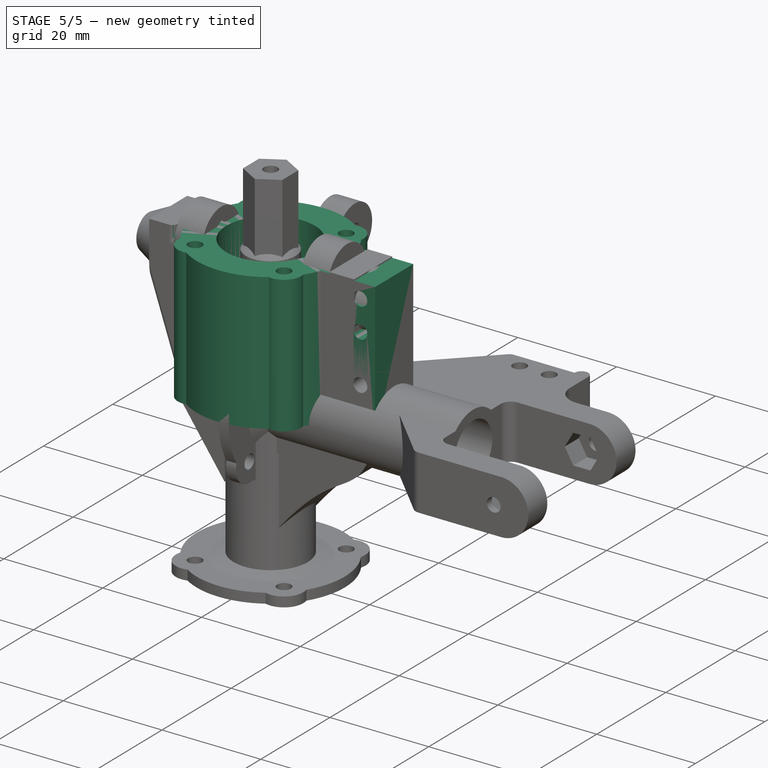
[diagram: stage 5 of 5 — iso view after this stage's code; geometry added in this stage tinted green]
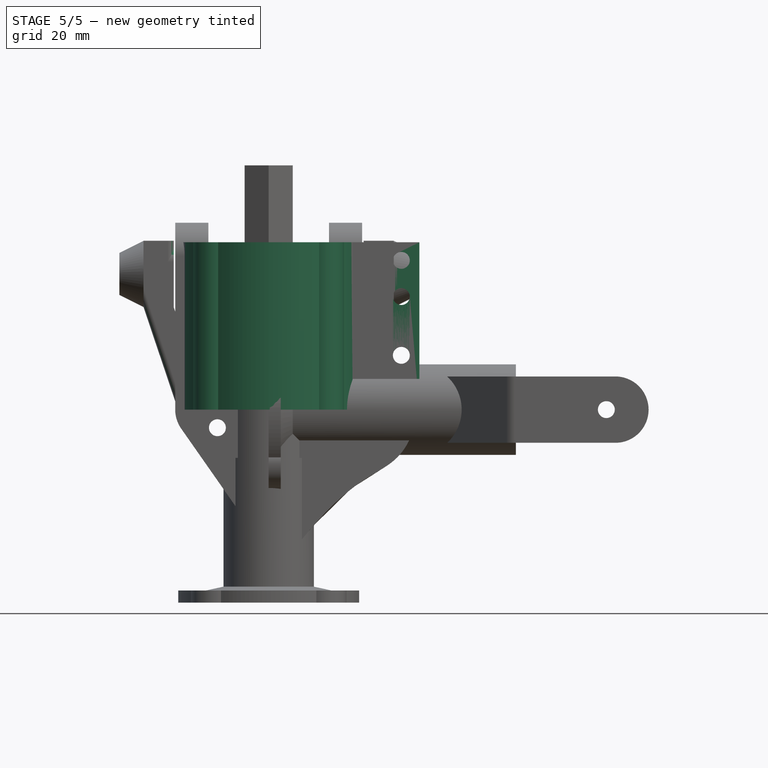
[diagram: stage 5 of 5 — front view after this stage's code; geometry added in this stage tinted green]
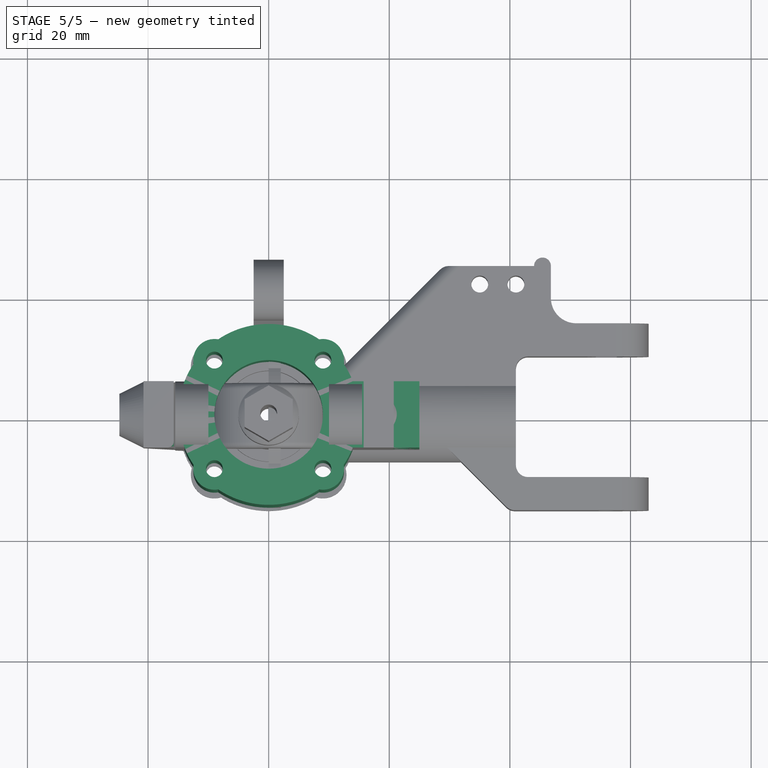
[diagram: stage 5 of 5 — top view after this stage's code; geometry added in this stage tinted green]
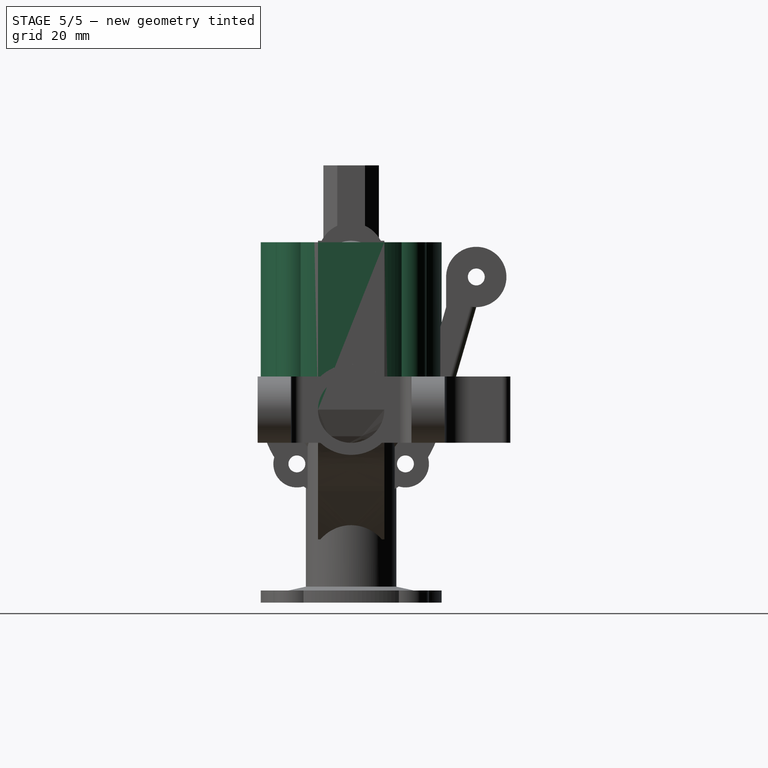
[diagram: stage 5 of 5 — right view after this stage's code; geometry added in this stage tinted green]
FEATURE [Spreadsheet::Sheet] Spreadsheet
  cells = A2=totalWidth; B2=37.5; A3=innerWidth; B3=35; A4=innerR; B4(innerR)=9; A5=outerR; B5(outerR)==B4 + B39; A6=screwOuterR; B6(screwOuterR)==B7 + 2.5; A7=screwTight; B7(screwTight)=1.4; A8=frontHousingScrewSqr; B8(frontHousingScrewSqr)=9; A9=distToUpperSupportEdge; B9(distToUpperSupportEdge)==B41 + B38; C9=Spreadsheet.outSideFastenScrewDist + Spreadsheet.screwToSide; A10=topHoleY; B10(topHoleY)=18; A11=topHoleX; B11(topHoleX)=8; A12=smallHoleY; B12(smallHoleY)=11.33; A13=smallHoleX; B13(smallHoleX)=15.42; A14=frontHousingScrewOuterSupportR; B14(frontHousingScrewOuterSupportR)=3.5; A18=pad; B18(pad)=27.75; C19=armSupportBaseRev; D19(armSupportBaseRev)=2; A20=armThickNess; B20(armThickNess)=5.5; C20=armBaseToPlatformLen; D20(armBaseToPlatformLen)==B42 - B23; A21=armHeight; B21(armHeight)=11; A22=armSep; B22(armSep)=20; A23=armTopLength; B23(armTopLength)=22; A24=armUpperLength; B24(armUpperLength)=31; A25=armSocketDia; B25(armSocketDia)=6.93; A26=armHexCenterToBottom; B26(armHexCenterToBottom)=26; A27=armHexCenterToSide; B27(armHexCenterToSide)==B21 / 2; C27=armHeight/2; A28=armBaseHeightAbove0; B28(armBaseHeightAbove0)==B24 - B23; A29=armSupportR; B29(armSupportR)==15 / 2; A30=armSupportHoleR; B30(armSupportHoleR)==B29 - 2; A31=armUnderDropLen; B31(armUnderDropLen)=8; A32=armHexHoleY; B32(armHexHoleY)==25 - 0.005; A33=armSupportBottomLength; B33(armSupportBottomLength)==41 - B28; A34=screwPassThroughHole; B34(screwPassThroughHole)=1.5; A35=armHexKnotHoleDepth; B35(armHexKnotHoleDepth)=4; A36=armUnderSupportAngle; B36(armUnderSupportAngle)=35; A37=armUnderSupportExtraLen; B37(armUnderSupportExtraLen)=5; A38=screwToSide; B38(screwToSide)=3; A39=screwSep; B39(screwSep)=6; A41=outSideFastenScrewDist; B41(outSideFastenScrewDist)=22; A42=armTotalLength; B42(armTotalLength)==B24 + B33; A45=frontWheelConnHexR; B45(frontWheelConnHexR)=4.6; A46=frontWheelConnHexTop; B46=9.5; A47=frontWheelShaftR; B47(frontWheelShaftR)=5.03; A48=frontWheelShaftLen; B48=10; A49=frontWheelShaftEndLen; B49(frontWheelShaftEndLen)=18; A50=frontWheelToTopOfShaft; B50(frontWheelToTopOfShaft)==B49 + B48; A51=frontWheelTotalLen; B51(frontWheelTotalLen)==B50 + B46 + 3; A52=frontWheelBaseWidth; B52(frontWheelBaseWidth)=18; A53=frontWheelBaseR; B53(frontWheelBaseR)==19 / 2; A54=frontWheelBaseTran; B54(frontWheelBaseTran)=4; A55=frontWheelShaftTran; B55(frontWheelShaftTran)=2; A56=frontWheelBasePad; B56(frontWheelBasePad)=10.8; A58=turnerBasePad; B58(turnerBasePad)=10; A59=bearingSocketR; B59(bearingSocketR)=7.56; A60=turnerBaseR; B60(turnerBaseR)==21 / 2; A61=turnerHoleR; B61(turnerHoleR)=6; A62=turnerArmInnerSep; B62(turnerArmInnerSep)=31.5; A63=turnerArmOuterSep; B63(turnerArmOuterSep)=45.5; A64=turnerArmWheelClearianceHeight; B64(turnerArmWheelClearianceHeight)=17; A65=bearingDepth; B65(bearingDepth)=5; A66=turnerWheelLimitR; B66(turnerWheelLimitR)=19; A67=turnerArmWidth; B67(turnerArmWidth)=11; A68=turnerSterringArmWidth; B68(turnerSterringArmWidth)=5; A69=turnerTotalHeight; B69=28.5; A70=turnerArmHeadScrewCapR; B70(turnerArmHeadScrewCapR)==5 / 2; A71=turnerArmHeadScrewCapHeight; B71(turnerArmHeadScrewCapHeight)=4; A72=turnerArmHeadScrewY; B72(turnerArmHeadScrewY)==B64 + B67 / 2; C72=turnerArmWheelClearianceHeight + turnerArmWidth/2; A73=turnerArmOuterBase; B73(turnerArmOuterBase)==B62 / 2 + B68; C73=halftInner+turnerSterringArmWidth; A74=turnerArmHeadScrewCapTopHeight; B74(turnerArmHeadScrewCapTopHeight)=1
FEATURE [Sketcher::SketchObject] Sketch
  FullyConstrained = true
  MapMode = 5
  Support = -> [XY_Plane]
  expr: Constraints[15] = Spreadsheet.armHeight
  expr: Constraints[34] = Spreadsheet.innerR
  expr: Constraints[35] = Spreadsheet.frontHousingScrewSqr
  expr: Constraints[36] = Spreadsheet.frontHousingScrewSqr
  expr: Constraints[3] = Spreadsheet.screwTight
  expr: Constraints[41] = Spreadsheet.frontHousingScrewOuterSupportR
  expr: Constraints[45] = Spreadsheet.distToUpperSupportEdge
  expr: Constraints[8] = Spreadsheet.outerR
  sketch-geometry (17):
    g0: Circle CenterX=-9 CenterY=9 CenterZ=0 NormalX=0 NormalY=0 NormalZ=1 AngleXU=0 Radius=1.4
    g1: Circle CenterX=9 CenterY=9 CenterZ=0 NormalX=0 NormalY=0 NormalZ=1 AngleXU=0 Radius=1.4
    g2: Circle CenterX=-9 CenterY=-9 CenterZ=0 NormalX=0 NormalY=0 NormalZ=1 AngleXU=0 Radius=1.4
    g3: Circle CenterX=9 CenterY=-9 CenterZ=0 NormalX=0 NormalY=0 NormalZ=1 AngleXU=0 Radius=1.4
    g4: LineSegment StartX=25 StartY=5.5 StartZ=0 EndX=25 EndY=-5.5 EndZ=0
    g5: LineSegment StartX=25 StartY=5.5 StartZ=0 EndX=13.9553 EndY=5.5 EndZ=0
    g6: LineSegment StartX=25 StartY=-5.5 StartZ=0 EndX=13.9553 EndY=-5.5 EndZ=0
    g7: ArcOfCircle CenterX=0 CenterY=0 CenterZ=0 NormalX=0 NormalY=0 NormalZ=1 AngleXU=0 Radius=15 StartAngle=0.375424 EndAngle=0.592423
    g8: ArcOfCircle CenterX=-9 CenterY=-9 CenterZ=0 NormalX=0 NormalY=0 NormalZ=1 AngleXU=0 Radius=3.5 StartAngle=2.96223 EndAngle=4.89175
    g9: ArcOfCircle CenterX=0 CenterY=0 CenterZ=0 NormalX=0 NormalY=0 NormalZ=1 AngleXU=0 Radius=15 StartAngle=2.54917 EndAngle=3.73402
    g10: ArcOfCircle CenterX=0 CenterY=0 CenterZ=0 NormalX=0 NormalY=0 NormalZ=1 AngleXU=0 Radius=15 StartAngle=4.11997 EndAngle=5.30481
    g11: ArcOfCircle CenterX=-9 CenterY=9 CenterZ=0 NormalX=0 NormalY=0 NormalZ=1 AngleXU=0 Radius=3.5 StartAngle=1.39143 EndAngle=3.32095
    g12: ArcOfCircle CenterX=9 CenterY=9 CenterZ=0 NormalX=0 NormalY=0 NormalZ=1 AngleXU=0 Radius=3.5 StartAngle=6.10382 EndAngle=8.03334
    g13: ArcOfCircle CenterX=0 CenterY=0 CenterZ=0 NormalX=0 NormalY=0 NormalZ=1 AngleXU=0 Radius=15 StartAngle=0.978373 EndAngle=2.16322
    g14: ArcOfCircle CenterX=9 CenterY=-9 CenterZ=0 NormalX=0 NormalY=0 NormalZ=1 AngleXU=0 Radius=3.5 StartAngle=4.53303 EndAngle=6.46255
    g15: ArcOfCircle CenterX=0 CenterY=0 CenterZ=0 NormalX=0 NormalY=0 NormalZ=1 AngleXU=0 Radius=15 StartAngle=5.69076 EndAngle=5.90776
    g16: Circle CenterX=0 CenterY=0 CenterZ=0 NormalX=0 NormalY=0 NormalZ=1 AngleXU=0 Radius=9
  constraints (46):
    c: Equal(g1,g0)
    c: Equal(g0,g2)
    c: Equal(g2,g3)
    c: Radius(g1) = 1.4
    c: Coincident(g5,g4)
    c: Horizontal(g5)
    c: Coincident(g6,g4)
    c: Horizontal(g6)
    c: Radius(g7) = 15
    c: Symmetric(g1,g0,g-2)
    c: Symmetric(g3,g1,g-1)
    c: Symmetric(g3,g2,g-2)
    c: Symmetric(g4,g4,g-1)
    c: Coincident(g15,g6)
    c: Coincident(g7,g5)
    c: DistanceY(g4,g4) = 11
    c: Coincident(g8,g2)
    c: Equal(g7,g9)
    c: Coincident(g7,g9)
    c: Equal(g9,g10)
    c: Coincident(g9,g10)
    c: Coincident(g8,g9)
    c: Coincident(g11,g9)
    c: Coincident(g11,g13)
    c: Equal(g7,g13)
    c: Coincident(g7,g12)
    c: Coincident(g13,g12)
    c: Coincident(g7,g13)
    c: Equal(g10,g15)
    c: Coincident(g10,g14)
    c: Coincident(g15,g14)
    c: Coincident(g10,g15)
    c: Coincident(g8,g10)
    c: Coincident(g16,g7)
    c: Radius(g16) = 9
    c: DistanceY(g7,g1) = 9
    c: DistanceX(g7,g1) = 9
    c: Coincident(g7,g-1)
    c: Equal(g12,g11)
    c: Equal(g12,g8)
    c: Equal(g12,g14)
    c: Radius(g12) = 3.5
    c: Coincident(g14,g3)
    c: Coincident(g11,g0)
    c: Coincident(g12,g1)
    c: DistanceX(g7,g4) = 25
FEATURE [PartDesign::Pad] Pad
  Direction = (0,0,1)
  Length = 27.75
  Length2 = 10
  Profile = -> Sketch
  ReferenceAxis = -> Sketch [N_Axis]
  Type = 0
  expr: Length = Spreadsheet.pad
FEATURE [Sketcher::SketchObject] Sketch010
  FullyConstrained = true
  MapMode = 5
  Placement = pos=(0,0,0) rot=(1,0,0;1.5708rad)
  Support = -> [XZ_Plane]
  expr: Constraints[10] = Spreadsheet.screwTight
  expr: Constraints[11] = Spreadsheet.screwToSide
  expr: Constraints[12] = Spreadsheet.screwSep
  expr: Constraints[13] = Spreadsheet.pad
  expr: Constraints[14] = Spreadsheet.screwToSide
  expr: Constraints[15] = Spreadsheet.screwSep
  expr: Constraints[2] = Spreadsheet.outSideFastenScrewDist
  sketch-geometry (5):
    g0: LineSegment StartX=22 StartY=0 StartZ=0 EndX=22 EndY=27.75 EndZ=0
    g1: Circle CenterX=22 CenterY=3 CenterZ=0 NormalX=0 NormalY=0 NormalZ=1 AngleXU=0 Radius=1.4
    g2: Circle CenterX=22 CenterY=9 CenterZ=0 NormalX=0 NormalY=0 NormalZ=1 AngleXU=0 Radius=1.4
    g3: Circle CenterX=22 CenterY=18.75 CenterZ=0 NormalX=0 NormalY=0 NormalZ=1 AngleXU=0 Radius=1.4
    g4: Circle CenterX=22 CenterY=24.75 CenterZ=0 NormalX=0 NormalY=0 NormalZ=1 AngleXU=0 Radius=1.4
  constraints (16):
    c: PointOnObject(g0,g-1)
    c: Vertical(g0)
    c: DistanceX(g-1,g0) = 22
    c: PointOnObject(g1,g0)
    c: PointOnObject(g2,g0)
    c: PointOnObject(g3,g0)
    c: PointOnObject(g4,g0)
    c: Equal(g4,g3)
    c: Equal(g4,g2)
    c: Equal(g4,g1)
    c: Radius(g4) = 1.4
    c: DistanceY(g0,g1) = 3
    c: DistanceY(g1,g2) = 6
    c: DistanceY(g-1,g0) = 27.75
    c: DistanceY(g4,g0) = 3
    c: DistanceY(g3,g4) = 6
FEATURE [PartDesign::Pocket] Pocket003
  BaseFeature = -> Pad
  Direction = (0,1,2e-16)
  Length = 5
  Length2 = 5
  Midplane = true
  Profile = -> Sketch010
  ReferenceAxis = -> Sketch010 [N_Axis]
  Type = 1
FEATURE [Sketcher::SketchObject] Sketch028  label="Sketch028BaseHolePath"
  FullyConstrained = true
  MapMode = 5
  Support = -> [XY_Plane003]
  expr: Constraints[1] = Spreadsheet.turnerHoleR
  sketch-geometry (1):
    g0: Circle CenterX=0 CenterY=0 CenterZ=0 NormalX=0 NormalY=0 NormalZ=1 AngleXU=0 Radius=6
  constraints (2):
    c: Coincident(g0,g-1)
    c: Radius(g0) = 6
FEATURE [PartDesign::Pocket] Pocket007
  BaseFeature = -> Revolution003
  Direction = (0,0,-1)
  Length = 5
  Length2 = 5
  Midplane = true
  Profile = -> Sketch028
  ReferenceAxis = -> Sketch028 [N_Axis]
  Type = 1
FEATURE [Sketcher::SketchObject] Sketch029
  FullyConstrained = true
  MapMode = 5
  Placement = pos=(0,0,10) rot=(0,0,1;0rad)
  Support = -> [Pocket007]
  expr: Constraints[1] = Spreadsheet.bearingSocketR
  sketch-geometry (1):
    g0: Circle CenterX=0 CenterY=0 CenterZ=0 NormalX=0 NormalY=0 NormalZ=1 AngleXU=0 Radius=7.56
  constraints (2):
    c: Coincident(g0,g-1)
    c: Radius(g0) = 7.56
FEATURE [PartDesign::Pocket] Pocket008
  BaseFeature = -> Pocket007
  Direction = (0,0,-1)
  Length = 5
  Length2 = 5
  Profile = -> Sketch029
  ReferenceAxis = -> Sketch029 [N_Axis]
  Type = 0
  expr: Length = Spreadsheet.bearingDepth
FEATURE [PartDesign::Fillet] Fillet006
  Base = -> Pocket008 [Edge99,Edge98,Edge87,Edge81,Edge84,Edge94,Edge63,Edge28,Edge38,Edge31]
  BaseFeature = -> Pocket008
  Radius = 1
  SupportTransform = false
  UseAllEdges = false
FEATURE [PartDesign::Fillet] Fillet007
  Base = -> Fillet006 [Edge17,Edge125]
  BaseFeature = -> Fillet006
  Radius = 1
  SupportTransform = false
  UseAllEdges = false
FEATURE [PartDesign::Fillet] Fillet008
  Base = -> Fillet006 [Edge124,Edge139,Edge153,Edge173]
  BaseFeature = -> Fillet006
  Radius = 3.5
  SupportTransform = false
  UseAllEdges = false
FEATURE [Sketcher::SketchObject] Sketch030
  ExternalGeometry = -> [Fillet008]
  FullyConstrained = false
  MapMode = 5
  Placement = pos=(0,0,0) rot=(1,0,0;1.5708rad)
  Support = -> [XZ_Plane003]
  sketch-geometry (6):
    g0: ArcOfCircle CenterX=11.6189 CenterY=4.73312 CenterZ=0 NormalX=0 NormalY=0 NormalZ=1 AngleXU=0 Radius=4.7579 StartAngle=4.81451 EndAngle=5.86804
    g1: LineSegment StartX=12.104 StartY=1.8163e-12 StartZ=0 EndX=15.025 EndY=1.8163e-12 EndZ=0
    g2: LineSegment StartX=15.025 StartY=1.8163e-12 StartZ=0 EndX=15.9727 EndY=2.81413 EndZ=0
    g3: LineSegment StartX=-15.9746 StartY=2.88074 StartZ=0 EndX=-15.9746 EndY=0 EndZ=0
    g4: ArcOfCircle CenterX=-11.619 CenterY=4.73317 CenterZ=0 NormalX=0 NormalY=0 NormalZ=1 AngleXU=0 Radius=4.73317 StartAngle=3.54371 EndAngle=4.71239
    g5: LineSegment StartX=-15.9746 StartY=0 StartZ=0 EndX=-11.619 EndY=0 EndZ=0
  constraints (15):
    c: Coincident(g0,g-3)
    c: PointOnObject(g-6,g0)
    c: Coincident(g1,g-5)
    c: Coincident(g2,g1)
    c: Coincident(g2,g-6)
    c: PointOnObject(g0,g2)
    c: Vertical(g3)
    c: Coincident(g4,g-4)
    c: Coincident(g5,g3)
    c: Horizontal(g5)
    c: PointOnObject(g3,g-1)
    c: Coincident(g4,g5)
    c: Coincident(g4,g3)
    c: Coincident(g1,g0)
    c: Horizontal(g1)
FEATURE [PartDesign::Pocket] Pocket009
  BaseFeature = -> Fillet008
  Direction = (0,1,2e-16)
  Length = 5
  Length2 = 5
  Midplane = true
  Profile = -> Sketch030
  ReferenceAxis = -> Sketch030 [N_Axis]
  Type = 1
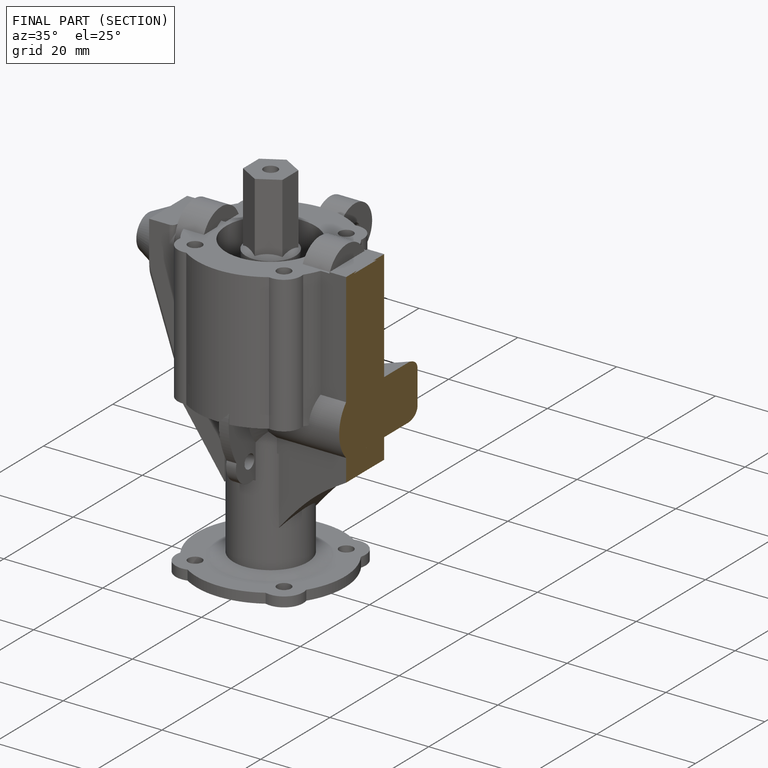
[diagram: finished part — half-section view (interior)]
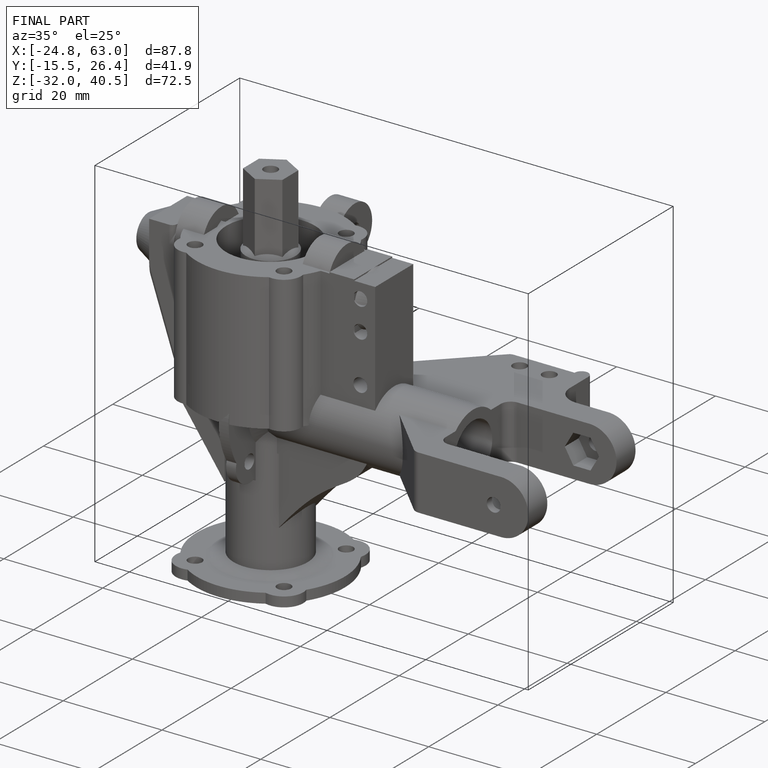
[diagram: finished part — iso view with bounding-box wireframe]
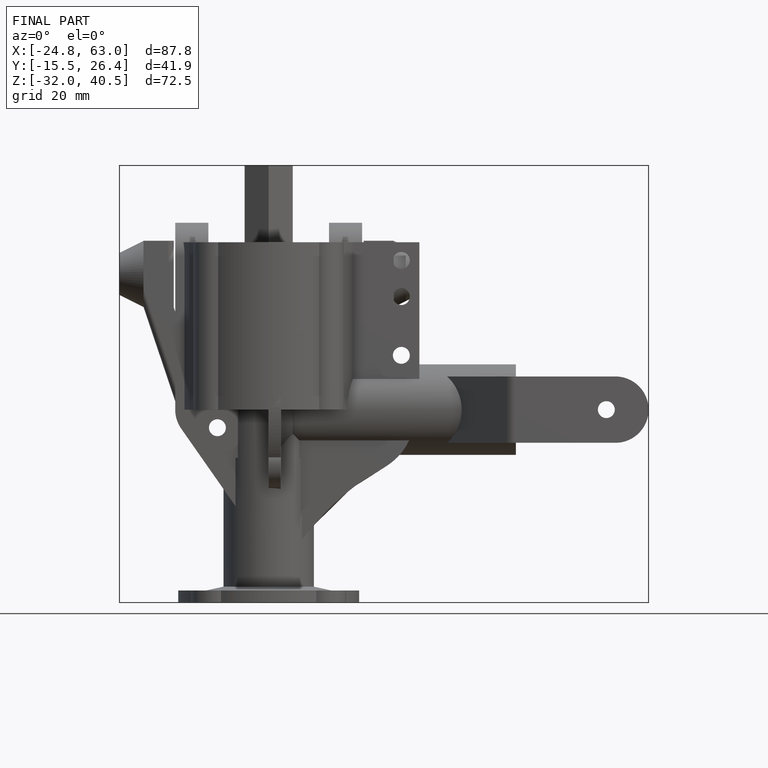
[diagram: finished part — front view with bounding-box wireframe]
